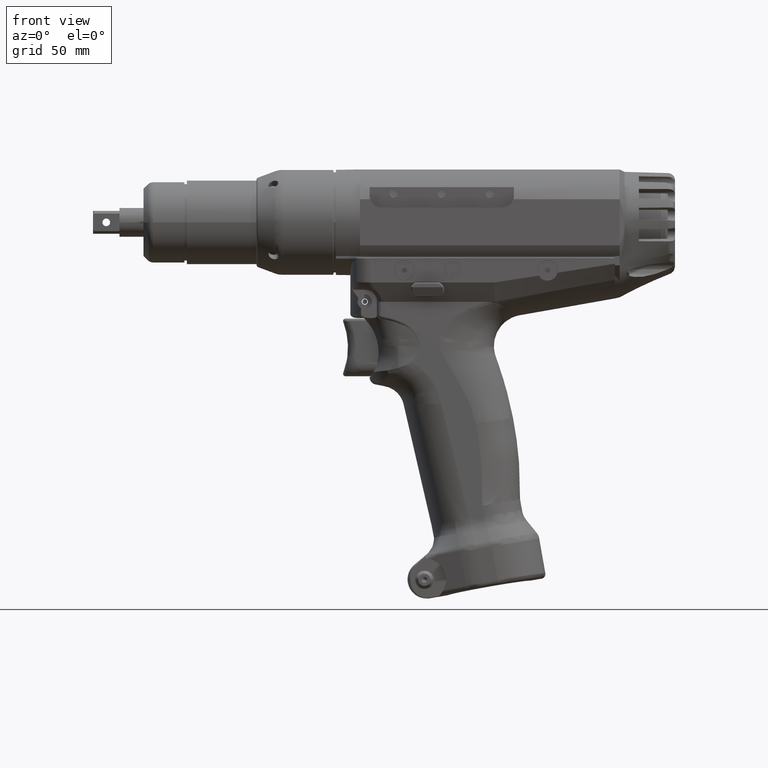
[diagram: clean part render]
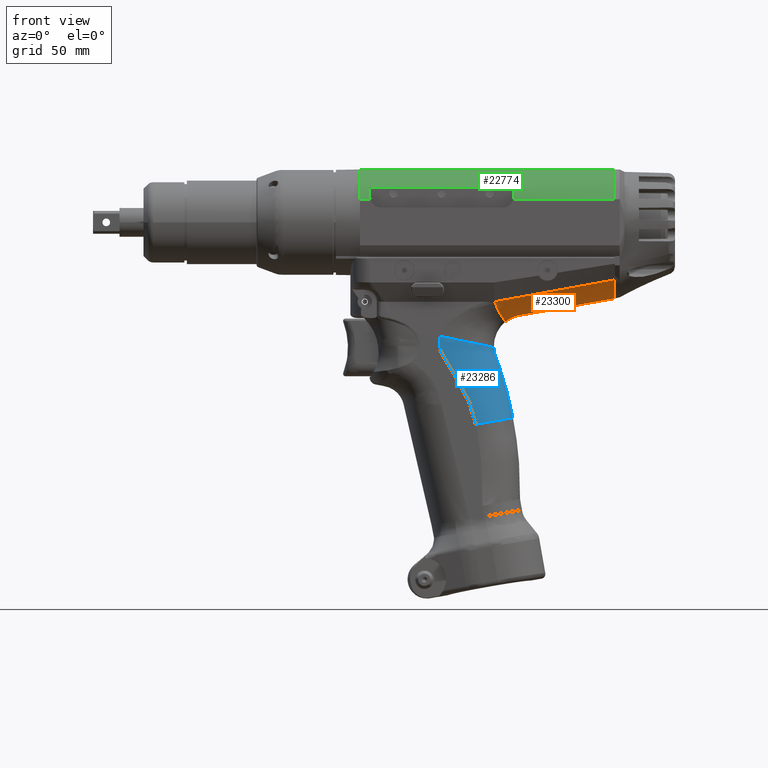
[diagram: same view with three faces highlighted in distinct colors, each labeled with its STEP entity id]
A machine part, front view with three faces highlighted in distinct colors.
Their STEP definitions:

[orange] entity #23300 — the highlighted face is a freeform B-spline surface patch.
#1977=LINE('',#65259,#3333);
#3333=VECTOR('',#30122,10.);
#5069=FACE_OUTER_BOUND('',#6399,.T.);
#6399=EDGE_LOOP('',(#19688,#19689,#19690,#19691,#19692,#19693));
#7757=B_SPLINE_CURVE_WITH_KNOTS('',3,(#37009,#37010,#37011,#37012,#37013,
#37014,#37015,#37016,#37017,#37018,#37019,#37020,#37021,#37022,#37023,#37024,
#37025,#37026,#37027,#37028,#37029,#37030),.UNSPECIFIED.,.F.,.F.,(4,3,3,
3,3,3,3,4),(0.120751289702859,0.999999999999998,2.,3.,4.,5.,6.,6.24662271346046),
 .UNSPECIFIED.);
#8297=B_SPLINE_CURVE_WITH_KNOTS('',3,(#61052,#61053,#61054,#61055,#61056,
#61057,#61058,#61059,#61060,#61061,#61062,#61063,#61064,#61065,#61066,#61067),
 .UNSPECIFIED.,.F.,.F.,(4,2,2,2,2,2,2,4),(0.,0.331487938194346,0.771346387680401,
0.895741269243872,1.60656573115644,3.50194612857809,11.0834863829682,26.4128958618054),
 .UNSPECIFIED.);
#8305=B_SPLINE_CURVE_WITH_KNOTS('',3,(#61277,#61278,#61279,#61280),
 .UNSPECIFIED.,.F.,.F.,(4,4),(6.24662271346046,7.),.UNSPECIFIED.);
#8349=B_SPLINE_CURVE_WITH_KNOTS('',3,(#65233,#65234,#65235,#65236,#65237,
#65238,#65239,#65240,#65241,#65242,#65243,#65244,#65245,#65246,#65247,#65248,
#65249,#65250,#65251,#65252,#65253,#65254,#65255,#65256,#65257,#65258),
 .UNSPECIFIED.,.F.,.F.,(4,2,2,2,2,2,2,2,2,2,2,2,4),(-24.1925661000692,-23.0585395758293,
-21.5213036041073,-19.9840676323854,-18.4468316606634,-16.9095956889415,
-15.3723597172195,-12.2978877737756,-9.2234158303317,-6.1489438868878,-4.61170791516585,
-3.0744719434439,-1.34517341830387),.UNSPECIFIED.);
#8350=B_SPLINE_CURVE_WITH_KNOTS('',3,(#65260,#65261,#65262,#65263),
 .UNSPECIFIED.,.F.,.F.,(4,4),(-1.00597880598376,0.),.UNSPECIFIED.);
#9052=VERTEX_POINT('',#37007);
#9053=VERTEX_POINT('',#37008);
#10285=VERTEX_POINT('',#58599);
#10357=VERTEX_POINT('',#61051);
#10366=VERTEX_POINT('',#61275);
#10397=VERTEX_POINT('',#65232);
#11439=EDGE_CURVE('',#9052,#9053,#7757,.T.);
#13521=EDGE_CURVE('',#10357,#9052,#8297,.T.);
#13541=EDGE_CURVE('',#9053,#10366,#8305,.T.);
#13595=EDGE_CURVE('',#10357,#10397,#8349,.T.);
#13596=EDGE_CURVE('',#10285,#10366,#1977,.T.);
#13597=EDGE_CURVE('',#10397,#10285,#8350,.T.);
#19688=ORIENTED_EDGE('',*,*,#13595,.F.);
#19689=ORIENTED_EDGE('',*,*,#13521,.T.);
#19690=ORIENTED_EDGE('',*,*,#11439,.T.);
#19691=ORIENTED_EDGE('',*,*,#13541,.T.);
#19692=ORIENTED_EDGE('',*,*,#13596,.F.);
#19693=ORIENTED_EDGE('',*,*,#13597,.F.);
#21027=B_SPLINE_SURFACE_WITH_KNOTS('',3,3,((#65012,#65013,#65014,#65015,
#65016,#65017,#65018,#65019,#65020,#65021),(#65022,#65023,#65024,#65025,
#65026,#65027,#65028,#65029,#65030,#65031),(#65032,#65033,#65034,#65035,
#65036,#65037,#65038,#65039,#65040,#65041),(#65042,#65043,#65044,#65045,
#65046,#65047,#65048,#65049,#65050,#65051),(#65052,#65053,#65054,#65055,
#65056,#65057,#65058,#65059,#65060,#65061),(#65062,#65063,#65064,#65065,
#65066,#65067,#65068,#65069,#65070,#65071),(#65072,#65073,#65074,#65075,
#65076,#65077,#65078,#65079,#65080,#65081),(#65082,#65083,#65084,#65085,
#65086,#65087,#65088,#65089,#65090,#65091),(#65092,#65093,#65094,#65095,
#65096,#65097,#65098,#65099,#65100,#65101),(#65102,#65103,#65104,#65105,
#65106,#65107,#65108,#65109,#65110,#65111),(#65112,#65113,#65114,#65115,
#65116,#65117,#65118,#65119,#65120,#65121),(#65122,#65123,#65124,#65125,
#65126,#65127,#65128,#65129,#65130,#65131),(#65132,#65133,#65134,#65135,
#65136,#65137,#65138,#65139,#65140,#65141),(#65142,#65143,#65144,#65145,
#65146,#65147,#65148,#65149,#65150,#65151),(#65152,#65153,#65154,#65155,
#65156,#65157,#65158,#65159,#65160,#65161),(#65162,#65163,#65164,#65165,
#65166,#65167,#65168,#65169,#65170,#65171),(#65172,#65173,#65174,#65175,
#65176,#65177,#65178,#65179,#65180,#65181),(#65182,#65183,#65184,#65185,
#65186,#65187,#65188,#65189,#65190,#65191),(#65192,#65193,#65194,#65195,
#65196,#65197,#65198,#65199,#65200,#65201),(#65202,#65203,#65204,#65205,
#65206,#65207,#65208,#65209,#65210,#65211),(#65212,#65213,#65214,#65215,
#65216,#65217,#65218,#65219,#65220,#65221),(#65222,#65223,#65224,#65225,
#65226,#65227,#65228,#65229,#65230,#65231)),.UNSPECIFIED.,.F.,.F.,.F.,(4,
2,2,2,2,2,2,2,2,2,4),(4,1,1,1,1,1,1,4),(0.,24.3228684679509,36.4843027019263,
39.5246612604202,41.0448405396671,41.8049301792906,42.1849749991023,42.565019818914,
44.085199098161,45.6053783774079,48.6457369359018),(0.11528020668838,1.,
2.,3.,4.,5.,6.,7.),.UNSPECIFIED.);
#23300=ADVANCED_FACE('',(#5069),#21027,.F.);
#30122=DIRECTION('',(0.983808990820089,0.00194793026394755,0.179209584423501));
#37007=CARTESIAN_POINT('',(195.999999999997,-0.299999999996725,-31.6448501099009));
#37008=CARTESIAN_POINT('',(196.,-13.6891796011585,-25.3378724260331));
#37009=CARTESIAN_POINT('Ctrl Pts',(195.999999999967,-0.299999999993897,
-31.644850109731));
#37010=CARTESIAN_POINT('Ctrl Pts',(195.999999999963,-1.02810496422027,-31.6327326673871));
#37011=CARTESIAN_POINT('Ctrl Pts',(195.999999999958,-1.75570034166345,-31.5764834883342));
#37012=CARTESIAN_POINT('Ctrl Pts',(195.999999999954,-2.478580025429,-31.4758805005406));
#37013=CARTESIAN_POINT('Ctrl Pts',(195.999999999948,-3.30073611766968,-31.361461239397));
#37014=CARTESIAN_POINT('Ctrl Pts',(195.999999999943,-4.11679231846235,-31.1896689941029));
#37015=CARTESIAN_POINT('Ctrl Pts',(195.999999999938,-4.91470826731349,-30.9633976281162));
#37016=CARTESIAN_POINT('Ctrl Pts',(195.999999999933,-5.71262421616464,-30.7371262621296));
#37017=CARTESIAN_POINT('Ctrl Pts',(195.999999999927,-6.49239991307425,-30.4563757754502));
#37018=CARTESIAN_POINT('Ctrl Pts',(195.99999999992,-7.25256158293823,-30.121578964292));
#37019=CARTESIAN_POINT('Ctrl Pts',(195.999999999913,-8.0127232528022,-29.7867821531339));
#37020=CARTESIAN_POINT('Ctrl Pts',(195.999999999904,-8.75327089562053,-29.3979390174969));
#37021=CARTESIAN_POINT('Ctrl Pts',(195.999999999899,-9.46353167705636,-28.9588308850281));
#37022=CARTESIAN_POINT('Ctrl Pts',(195.999999999893,-10.1737924584922,-28.5197227525592));
#37023=CARTESIAN_POINT('Ctrl Pts',(195.999999999891,-10.8537663785455,-28.0303496232586));
#37024=CARTESIAN_POINT('Ctrl Pts',(195.999999999885,-11.4907036740203,-27.5024436233053));
#37025=CARTESIAN_POINT('Ctrl Pts',(195.999999999879,-12.127640969495,-26.974537623352));
#37026=CARTESIAN_POINT('Ctrl Pts',(195.99999999987,-12.7215416403912,-26.4080987527462));
#37027=CARTESIAN_POINT('Ctrl Pts',(195.999999999865,-13.2809254488593,-25.7971204903548));
#37028=CARTESIAN_POINT('Ctrl Pts',(195.999999999864,-13.4188822015695,-25.6464393734184));
#37029=CARTESIAN_POINT('Ctrl Pts',(195.999999999863,-13.5547395433439,-25.4930492476205));
#37030=CARTESIAN_POINT('Ctrl Pts',(195.999999999862,-13.689179601171,-25.3378724260439));
#58599=CARTESIAN_POINT('',(145.999999999915,-15.0000000000407,-32.9999999996538));
#61051=CARTESIAN_POINT('',(150.705611217017,-0.299999968525028,-41.1517619435124));
#61052=CARTESIAN_POINT('Ctrl Pts',(150.705610440184,-0.299999999998143,
-41.1517605772717));
#61053=CARTESIAN_POINT('Ctrl Pts',(151.579250041938,-0.299999999998143,
-40.4752326823819));
#61054=CARTESIAN_POINT('Ctrl Pts',(152.536845140365,-0.30000000002267,-39.9119746124731));
#61055=CARTESIAN_POINT('Ctrl Pts',(154.911667933358,-0.30000000002267,-38.897243423224));
#61056=CARTESIAN_POINT('Ctrl Pts',(155.855744480653,-0.299999999998142,
-38.7250232728524));
#61057=CARTESIAN_POINT('Ctrl Pts',(157.00006906153,-0.299999999998142,-38.5227539381955));
#61058=CARTESIAN_POINT('Ctrl Pts',(157.625027452464,-0.299999999998142,
-38.4126013061425));
#61059=CARTESIAN_POINT('Ctrl Pts',(158.045741500046,-0.299999999998142,
-38.3383921441969));
#61060=CARTESIAN_POINT('Ctrl Pts',(158.403766373522,-0.299999999998142,
-38.2752539913426));
#61061=CARTESIAN_POINT('Ctrl Pts',(159.716693405688,-0.299999999998142,
-38.0436880481462));
#61062=CARTESIAN_POINT('Ctrl Pts',(160.671529522951,-0.299999999998142,
-37.8752852773563));
#61063=CARTESIAN_POINT('Ctrl Pts',(165.445718878357,-0.299999999998142,
-37.0332661726645));
#61064=CARTESIAN_POINT('Ctrl Pts',(169.265074943464,-0.299999999998141,
-36.3596658672443));
#61065=CARTESIAN_POINT('Ctrl Pts',(180.806942476138,-0.299999999998141,
-34.3241307948062));
#61066=CARTESIAN_POINT('Ctrl Pts',(188.435697378349,-0.29999999999814,-32.9787787557547));
#61067=CARTESIAN_POINT('Ctrl Pts',(195.999999999967,-0.29999999999814,-31.6448501097309));
#61275=CARTESIAN_POINT('',(195.999999999912,-14.9010005867998,-23.8920539405215));
#61277=CARTESIAN_POINT('Ctrl Pts',(195.999999999862,-13.689179601171,-25.3378724260439));
#61278=CARTESIAN_POINT('Ctrl Pts',(195.99999999986,-14.0998639397983,-24.863841907391));
#61279=CARTESIAN_POINT('Ctrl Pts',(195.999999999858,-14.497322666664,-24.3731385514069));
#61280=CARTESIAN_POINT('Ctrl Pts',(195.999999999854,-14.9010005864602,-23.8920539402476));
#65012=CARTESIAN_POINT('Ctrl Pts',(196.00000000001,-0.286408146948123,-31.6450711841936));
#65013=CARTESIAN_POINT('Ctrl Pts',(196.00000000001,-1.01904992681437,-31.6334309656962));
#65014=CARTESIAN_POINT('Ctrl Pts',(196.00000000001,-2.57875504437379,-31.513449239136));
#65015=CARTESIAN_POINT('Ctrl Pts',(196.00000000001,-4.93284851925514,-31.0178767487961));
#65016=CARTESIAN_POINT('Ctrl Pts',(196.00000000001,-7.27217560998403,-30.1756252887551));
#65017=CARTESIAN_POINT('Ctrl Pts',(196.,-9.49381853843901,-29.0090958818411));
#65018=CARTESIAN_POINT('Ctrl Pts',(196.00000000001,-11.5337402985989,-27.540976493936));
#65019=CARTESIAN_POINT('Ctrl Pts',(196.,-13.3154423112873,-25.8416598821151));
#65020=CARTESIAN_POINT('Ctrl Pts',(196.00000000001,-14.3651762033671,-24.5306245737591));
#65021=CARTESIAN_POINT('Ctrl Pts',(196.00000000001,-14.9010005864598,-23.8920539402191));
#65022=CARTESIAN_POINT('Ctrl Pts',(188.362114612115,-0.285316752725644,
-32.9919811132276));
#65023=CARTESIAN_POINT('Ctrl Pts',(188.33438481969,-1.01522251480896,-32.9859531687053));
#65024=CARTESIAN_POINT('Ctrl Pts',(188.274415134422,-2.5700157096846,-32.8835686873007));
#65025=CARTESIAN_POINT('Ctrl Pts',(188.17715714243,-4.91971399228779,-32.4125091049352));
#65026=CARTESIAN_POINT('Ctrl Pts',(188.07364876165,-7.25803020090529,-31.5959770584001));
#65027=CARTESIAN_POINT('Ctrl Pts',(187.96815640064,-9.48223165329,-30.4552990400662));
#65028=CARTESIAN_POINT('Ctrl Pts',(187.86350629352,-11.5283125461864,-29.0124604004481));
#65029=CARTESIAN_POINT('Ctrl Pts',(187.76392370831,-13.3193961448074,-27.3368462059921));
#65030=CARTESIAN_POINT('Ctrl Pts',(187.69917518998,-14.3776308223543,-26.0409806842332));
#65031=CARTESIAN_POINT('Ctrl Pts',(187.66672585799,-14.9175003715186,-25.4100341679542));
#65032=CARTESIAN_POINT('Ctrl Pts',(180.72419286707,-0.284391488477558,-34.3389454882404));
#65033=CARTESIAN_POINT('Ctrl Pts',(180.668773596683,-1.01197847020627,-34.3387622591521));
#65034=CARTESIAN_POINT('Ctrl Pts',(180.549227569445,-2.56262260015173,-34.25621784332));
#65035=CARTESIAN_POINT('Ctrl Pts',(180.35497477713,-4.90873866208477,-33.8111947595111));
#65036=CARTESIAN_POINT('Ctrl Pts',(180.14808841585,-7.24646213321357,-33.021166666527));
#65037=CARTESIAN_POINT('Ctrl Pts',(179.937090072,-9.47321070436779,-31.9063204503861));
#65038=CARTESIAN_POINT('Ctrl Pts',(179.72762850625,-11.524997918787,-30.487916602834));
#65039=CARTESIAN_POINT('Ctrl Pts',(179.52816605563,-13.3246029552764,-28.8343962098991));
#65040=CARTESIAN_POINT('Ctrl Pts',(179.39837770509,-14.3904864211958,-27.5521065354361));
#65041=CARTESIAN_POINT('Ctrl Pts',(179.33334182772,-14.9340003741547,-26.928034412815));
#65042=CARTESIAN_POINT('Ctrl Pts',(169.267367976889,-0.283258166735067,
-36.3594557552525));
#65043=CARTESIAN_POINT('Ctrl Pts',(169.170479365899,-1.00799958973848,-36.368395839287));
#65044=CARTESIAN_POINT('Ctrl Pts',(168.962178862618,-2.55347022751914,-36.3190512117716));
#65045=CARTESIAN_POINT('Ctrl Pts',(168.62284802493,-4.89538285064981,-35.915418567059));
#65046=CARTESIAN_POINT('Ctrl Pts',(168.26110555078,-7.23281891296172,-35.1663480653151));
#65047=CARTESIAN_POINT('Ctrl Pts',(167.89183810894,-9.46337169773578,-34.0902174227371));
#65048=CARTESIAN_POINT('Ctrl Pts',(167.52492226673,-11.5230667070879,-32.707165771106));
#65049=CARTESIAN_POINT('Ctrl Pts',(167.1751936558,-13.3342160209368,-31.0843160581071));
#65050=CARTESIAN_POINT('Ctrl Pts',(166.94740479264,-14.4103465369533,-29.8199433365421));
#65051=CARTESIAN_POINT('Ctrl Pts',(166.83328169011,-14.9587503466117,-29.205031882361));
#65052=CARTESIAN_POINT('Ctrl Pts',(165.448256108299,-0.282922871417137,
-37.0330011231889));
#65053=CARTESIAN_POINT('Ctrl Pts',(165.337562715532,-1.0068212639932,-37.0450395875585));
#65054=CARTESIAN_POINT('Ctrl Pts',(165.099795017358,-2.55074140933272,-37.0073270304707));
#65055=CARTESIAN_POINT('Ctrl Pts',(164.71220070399,-4.89144731693484,-36.617872137014));
#65056=CARTESIAN_POINT('Ctrl Pts',(164.29890390513,-7.22888757253237,-35.882647434279));
#65057=CARTESIAN_POINT('Ctrl Pts',(163.87690885715,-9.4607056859156,-34.819411317218));
#65058=CARTESIAN_POINT('Ctrl Pts',(163.45749960145,-11.5229283101371,-33.447923645516));
#65059=CARTESIAN_POINT('Ctrl Pts',(163.05763788029,-13.337719974656,-31.834884364784));
#65060=CARTESIAN_POINT('Ctrl Pts',(162.79712866215,-14.4170623866498,-30.576076435788));
#65061=CARTESIAN_POINT('Ctrl Pts',(162.66661853917,-14.967000290779,-29.96402674692));
#65062=CARTESIAN_POINT('Ctrl Pts',(160.674658964066,-0.282556821637965,
-37.8748972627109));
#65063=CARTESIAN_POINT('Ctrl Pts',(160.54671374067,-1.00553227992357,-37.8908845943245));
#65064=CARTESIAN_POINT('Ctrl Pts',(160.272217409142,-2.54771522596848,-37.86842596911));
#65065=CARTESIAN_POINT('Ctrl Pts',(159.82434512387,-4.88714513355111,-37.497182131173));
#65066=CARTESIAN_POINT('Ctrl Pts',(159.34661164463,-7.2247101519802,-36.779519623892));
#65067=CARTESIAN_POINT('Ctrl Pts',(158.858666015619,-9.45810664841359,-35.732401803347));
#65068=CARTESIAN_POINT('Ctrl Pts',(158.37355140323,-11.5233593255955,-34.375107217339));
#65069=CARTESIAN_POINT('Ctrl Pts',(157.91089247563,-13.3424580152191,-32.7738270021879));
#65070=CARTESIAN_POINT('Ctrl Pts',(157.60936603291,-14.4255717198207,-31.521473645499));
#65071=CARTESIAN_POINT('Ctrl Pts',(157.45831645042,-14.9773126678256,-30.912765436667));
#65072=CARTESIAN_POINT('Ctrl Pts',(159.719961409297,-0.282486161443022,
-38.0432717424327));
#65073=CARTESIAN_POINT('Ctrl Pts',(159.588566499566,-1.00528330486255,-38.0600511064173));
#65074=CARTESIAN_POINT('Ctrl Pts',(159.306731492554,-2.54712820047722,-38.0406795032557));
#65075=CARTESIAN_POINT('Ctrl Pts',(158.84681105031,-4.88631389780917,-37.673100732295));
#65076=CARTESIAN_POINT('Ctrl Pts',(158.35619787492,-7.22390951024775,-36.9589617907421));
#65077=CARTESIAN_POINT('Ctrl Pts',(157.8550696465,-9.45762150706462,-35.9150660520261));
#65078=CARTESIAN_POINT('Ctrl Pts',(157.35682114754,-11.5234740409598,-34.5605954848051));
#65079=CARTESIAN_POINT('Ctrl Pts',(156.88160935104,-13.3434224663338,-32.961640518996));
#65080=CARTESIAN_POINT('Ctrl Pts',(156.57188355641,-14.427278877761,-31.71055216333));
#65081=CARTESIAN_POINT('Ctrl Pts',(156.41672814943,-14.9793750004446,-31.1025000379062));
#65082=CARTESIAN_POINT('Ctrl Pts',(158.287789326238,-0.282384679784158,
-38.2958632146118));
#65083=CARTESIAN_POINT('Ctrl Pts',(158.15122613672,-1.00492549893844,-38.3138405013659));
#65084=CARTESIAN_POINT('Ctrl Pts',(157.858400856738,-2.54628093481271,-38.2991451748589));
#65085=CARTESIAN_POINT('Ctrl Pts',(157.38042072676,-4.88512042963182,-37.937099981804));
#65086=CARTESIAN_POINT('Ctrl Pts',(156.87048972292,-7.22277230613446,-37.2282655142701));
#65087=CARTESIAN_POINT('Ctrl Pts',(156.34957795315,-9.45695732766406,-36.18920363378));
#65088=CARTESIAN_POINT('Ctrl Pts',(155.83160756588,-11.5236985277892,-34.838950899244));
#65089=CARTESIAN_POINT('Ctrl Pts',(155.33753525254,-13.3449003834677,-33.243448092338));
#65090=CARTESIAN_POINT('Ctrl Pts',(155.01548251461,-14.4298498645997,-31.994221468203));
#65091=CARTESIAN_POINT('Ctrl Pts',(154.85415506348,-14.9824688768271,-31.387136665531));
#65092=CARTESIAN_POINT('Ctrl Pts',(157.810491277091,-0.282350245490775,
-38.3800299519953));
#65093=CARTESIAN_POINT('Ctrl Pts',(157.672186968569,-1.00480399852616,-38.398399113914));
#65094=CARTESIAN_POINT('Ctrl Pts',(157.3756664719,-2.54599173317531,-38.3852919204692));
#65095=CARTESIAN_POINT('Ctrl Pts',(156.89162966616,-4.8847117264701,-38.025102871848));
#65096=CARTESIAN_POINT('Ctrl Pts',(156.37523756245,-7.2223802393525,-37.3180436855201));
#65097=CARTESIAN_POINT('Ctrl Pts',(155.84772598835,-9.45672297502004,-36.280595220388));
#65098=CARTESIAN_POINT('Ctrl Pts',(155.32319349381,-11.5237626540424,-34.931745365803));
#65099=CARTESIAN_POINT('Ctrl Pts',(154.82286225283,-13.3453866238035,-33.337385329519));
#65100=CARTESIAN_POINT('Ctrl Pts',(154.49673002221,-14.4307047305016,-32.0887706818619));
#65101=CARTESIAN_POINT('Ctrl Pts',(154.33335898547,-14.983500046953,-31.4820043172639));
#65102=CARTESIAN_POINT('Ctrl Pts',(157.094409205554,-0.282304350935519,
-38.5063573532138));
#65103=CARTESIAN_POINT('Ctrl Pts',(156.953563311185,-1.00464215459453,-38.5253466261788));
#65104=CARTESIAN_POINT('Ctrl Pts',(156.6516283333,-2.54560813947947,-38.5145574333547));
#65105=CARTESIAN_POINT('Ctrl Pts',(156.15865189205,-4.8841792006454,-38.157139705604));
#65106=CARTESIAN_POINT('Ctrl Pts',(155.63265522281,-7.22188826243172,-37.452732168465));
#65107=CARTESIAN_POINT('Ctrl Pts',(155.09526649751,-9.45646714281527,-36.417694737458));
#65108=CARTESIAN_POINT('Ctrl Pts',(154.56084642418,-11.5239376506971,-35.070942607797));
#65109=CARTESIAN_POINT('Ctrl Pts',(154.05101958239,-13.346162709815,-33.478292806042));
#65110=CARTESIAN_POINT('Ctrl Pts',(153.71865411888,-14.4320019774682,-32.230595178851));
#65111=CARTESIAN_POINT('Ctrl Pts',(153.55216454205,-14.9850468027882,-31.6243058543201));
#65112=CARTESIAN_POINT('Ctrl Pts',(156.85571110149,-0.282278848120631,-38.5483503037067));
#65113=CARTESIAN_POINT('Ctrl Pts',(156.713870580857,-1.00455182821022,-38.5674773119719));
#65114=CARTESIAN_POINT('Ctrl Pts',(156.409867246483,-2.54538745146504,-38.557629108767));
#65115=CARTESIAN_POINT('Ctrl Pts',(155.91361636721,-4.88385282993198,-38.201179870787));
#65116=CARTESIAN_POINT('Ctrl Pts',(155.38425131777,-7.22154660837639,-37.497687414199));
#65117=CARTESIAN_POINT('Ctrl Pts',(154.84354366472,-9.45620503645064,-36.463469412964));
#65118=CARTESIAN_POINT('Ctrl Pts',(154.3059462021,-11.5238504358123,-35.117415962987));
#65119=CARTESIAN_POINT('Ctrl Pts',(153.79320768362,-13.3463352369502,-33.525319965292));
#65120=CARTESIAN_POINT('Ctrl Pts',(153.45902532619,-14.4324070263481,-32.277906696956));
#65121=CARTESIAN_POINT('Ctrl Pts',(153.29161836264,-14.9855626811675,-31.671766665285));
#65122=CARTESIAN_POINT('Ctrl Pts',(156.497837717852,-0.282279266350929,
-38.6117451408794));
#65123=CARTESIAN_POINT('Ctrl Pts',(156.355039636598,-1.00455411316744,-38.6313401770605));
#65124=CARTESIAN_POINT('Ctrl Pts',(156.048884955656,-2.54540654471226,-38.622298044948));
#65125=CARTESIAN_POINT('Ctrl Pts',(155.54876770832,-4.88392479916688,-38.267155407604));
#65126=CARTESIAN_POINT('Ctrl Pts',(155.01491503232,-7.2217043318516,-37.564935230767));
#65127=CARTESIAN_POINT('Ctrl Pts',(154.46926888349,-9.45647901094389,-36.5318981205021));
#65128=CARTESIAN_POINT('Ctrl Pts',(153.92640422169,-11.5242688455866,-35.186899317705));
#65129=CARTESIAN_POINT('Ctrl Pts',(153.40829562832,-13.3469193936773,-33.595693318858));
#65130=CARTESIAN_POINT('Ctrl Pts',(153.0703775665,-14.4331182542593,-32.3487812739029));
#65131=CARTESIAN_POINT('Ctrl Pts',(152.90112028577,-14.9863358627794,-31.742899373695));
#65132=CARTESIAN_POINT('Ctrl Pts',(156.377942103957,-0.282195491596259,
-38.6320252456304));
#65133=CARTESIAN_POINT('Ctrl Pts',(156.233681778603,-1.00425585005118,-38.6511962840888));
#65134=CARTESIAN_POINT('Ctrl Pts',(155.924788078898,-2.54465184237885,-38.6437396055251));
#65135=CARTESIAN_POINT('Ctrl Pts',(155.42119507055,-4.88272814361179,-38.289333098781));
#65136=CARTESIAN_POINT('Ctrl Pts',(154.88472195194,-7.22029991194107,-37.5877360674201));
#65137=CARTESIAN_POINT('Ctrl Pts',(154.33746088238,-9.45511985069501,-36.555177162668));
#65138=CARTESIAN_POINT('Ctrl Pts',(153.79405943076,-11.5232138997955,-35.210494453381));
#65139=CARTESIAN_POINT('Ctrl Pts',(153.27647576117,-13.3464060619082,-33.619435333911));
#65140=CARTESIAN_POINT('Ctrl Pts',(152.93960529754,-14.4331290160434,-32.3725138348261));
#65141=CARTESIAN_POINT('Ctrl Pts',(152.77080975739,-14.9865938760972,-31.7666365989651));
#65142=CARTESIAN_POINT('Ctrl Pts',(156.141089750158,-0.282445013158896,
-38.6768286580897));
#65143=CARTESIAN_POINT('Ctrl Pts',(155.999570324917,-1.00514551354674,-38.6980375771681));
#65144=CARTESIAN_POINT('Ctrl Pts',(155.69521458356,-2.54692461026169,-38.6872225094027));
#65145=CARTESIAN_POINT('Ctrl Pts',(155.19548557891,-4.88640095904661,-38.3328097808211));
#65146=CARTESIAN_POINT('Ctrl Pts',(154.65930363506,-7.22473184295396,-37.63148312127));
#65147=CARTESIAN_POINT('Ctrl Pts',(154.10859944159,-9.45961008592938,-36.59947087266));
#65148=CARTESIAN_POINT('Ctrl Pts',(153.55800886416,-11.5270401828562,-35.2556039935482));
#65149=CARTESIAN_POINT('Ctrl Pts',(153.02991526009,-13.3488987530834,-33.6655871579181));
#65150=CARTESIAN_POINT('Ctrl Pts',(152.68370927566,-14.4342760318095,-32.419524717502));
#65151=CARTESIAN_POINT('Ctrl Pts',(152.51045928953,-14.9871093669699,-31.814061759324));
#65152=CARTESIAN_POINT('Ctrl Pts',(156.022648662995,-0.282537726218189,
-38.700877349721));
#65153=CARTESIAN_POINT('Ctrl Pts',(155.881853315522,-1.00547509462484,-38.7227185756753));
#65154=CARTESIAN_POINT('Ctrl Pts',(155.578495740162,-2.5477508083587,-38.7107178863841));
#65155=CARTESIAN_POINT('Ctrl Pts',(155.07937163931,-4.88773987036712,-38.3561578557949));
#65156=CARTESIAN_POINT('Ctrl Pts',(154.54263108315,-7.22635398120124,-37.654754154292));
#65157=CARTESIAN_POINT('Ctrl Pts',(153.99018075343,-9.46126402530646,-36.622741417882));
#65158=CARTESIAN_POINT('Ctrl Pts',(153.4366705875,-11.5284665064793,-35.27895278701));
#65159=CARTESIAN_POINT('Ctrl Pts',(152.90464427993,-13.3498565011364,-33.689086961098));
#65160=CARTESIAN_POINT('Ctrl Pts',(152.55509396742,-14.4347572774092,-32.44317490951));
#65161=CARTESIAN_POINT('Ctrl Pts',(152.38023846866,-14.9873672026678,-31.8377826435701));
#65162=CARTESIAN_POINT('Ctrl Pts',(155.432964462815,-0.283157288507183,
-38.8292893815133));
#65163=CARTESIAN_POINT('Ctrl Pts',(155.297142863966,-1.00767424039154,-38.8547275310834));
#65164=CARTESIAN_POINT('Ctrl Pts',(155.000691686113,-2.55321016994238,-38.8344762396026));
#65165=CARTESIAN_POINT('Ctrl Pts',(154.50680020286,-4.89656496562248,-38.477767940973));
#65166=CARTESIAN_POINT('Ctrl Pts',(153.96826082868,-7.23700776734479,-37.774651954012));
#65167=CARTESIAN_POINT('Ctrl Pts',(153.40676619367,-9.47206550077342,-36.741455945972));
#65168=CARTESIAN_POINT('Ctrl Pts',(152.8370081148,-11.5376830163916,-35.397060374003));
#65169=CARTESIAN_POINT('Ctrl Pts',(152.28244646477,-13.3558812972657,-33.807168172528));
#65170=CARTESIAN_POINT('Ctrl Pts',(151.91341954452,-14.4375587890092,-32.5616148368929));
#65171=CARTESIAN_POINT('Ctrl Pts',(151.72923532994,-14.9886561812467,-31.956368673014));
#65172=CARTESIAN_POINT('Ctrl Pts',(154.967091666711,-0.283866187525075,
-38.958243270857));
#65173=CARTESIAN_POINT('Ctrl Pts',(154.835432604861,-1.01017764258047,-38.9858052808516));
#65174=CARTESIAN_POINT('Ctrl Pts',(154.54309020572,-2.55921752822809,-38.9558568622397));
#65175=CARTESIAN_POINT('Ctrl Pts',(154.05239944666,-4.90625520435505,-38.59353412425));
#65176=CARTESIAN_POINT('Ctrl Pts',(153.51147277393,-7.24867029795043,-37.885039946857));
#65177=CARTESIAN_POINT('Ctrl Pts',(152.9418745903,-9.48383227128692,-36.846947030422));
#65178=CARTESIAN_POINT('Ctrl Pts',(152.35835620633,-11.5476302101345,-35.498283266745));
#65179=CARTESIAN_POINT('Ctrl Pts',(151.78513765499,-13.362227324567,-33.904902835938));
#65180=CARTESIAN_POINT('Ctrl Pts',(151.40018648804,-14.4402883283787,-32.6574723967561));
#65181=CARTESIAN_POINT('Ctrl Pts',(151.20836153069,-14.9896875052598,-32.0512504823651));
#65182=CARTESIAN_POINT('Ctrl Pts',(154.052846570824,-0.285757895197247,
-39.2668669346086));
#65183=CARTESIAN_POINT('Ctrl Pts',(153.930154826053,-1.01682439636591,-39.2970791195296));
#65184=CARTESIAN_POINT('Ctrl Pts',(153.642705079202,-2.57462265271455,-39.2418232319211));
#65185=CARTESIAN_POINT('Ctrl Pts',(153.15609898025,-4.93107350007641,-38.860655567483));
#65186=CARTESIAN_POINT('Ctrl Pts',(152.60790365537,-7.27848621284954,-38.133605199662));
#65187=CARTESIAN_POINT('Ctrl Pts',(152.0195287427,-9.51382787972963,-37.07806834502));
#65188=CARTESIAN_POINT('Ctrl Pts',(151.40591261076,-11.5728461987307,-35.7135810339961));
#65189=CARTESIAN_POINT('Ctrl Pts',(150.79290066752,-13.3780746396807,-34.106583364273));
#65190=CARTESIAN_POINT('Ctrl Pts',(150.37447020057,-14.446756875838,-32.8512810450641));
#65191=CARTESIAN_POINT('Ctrl Pts',(150.16654812797,-14.9917502835776,-32.24102608789));
#65192=CARTESIAN_POINT('Ctrl Pts',(153.604264074229,-0.286938488535632,
-39.44666870454));
#65193=CARTESIAN_POINT('Ctrl Pts',(153.486355019675,-1.02095942141707,-39.4773702532639));
#65194=CARTESIAN_POINT('Ctrl Pts',(153.199631355365,-2.58399228540517,-39.4065354670415));
#65195=CARTESIAN_POINT('Ctrl Pts',(152.71388332694,-4.94615640135169,-39.012112586873));
#65196=CARTESIAN_POINT('Ctrl Pts',(152.160832172279,-7.29658563994998,-38.2718559117891));
#65197=CARTESIAN_POINT('Ctrl Pts',(151.56186201535,-9.53200290684215,-37.203741230396));
#65198=CARTESIAN_POINT('Ctrl Pts',(150.93203814421,-11.588070526467,-35.8276660480811));
#65199=CARTESIAN_POINT('Ctrl Pts',(150.29806407143,-13.387549295229,-34.2105065174781));
#65200=CARTESIAN_POINT('Ctrl Pts',(149.86222665701,-14.4504869468235,-32.949186759301));
#65201=CARTESIAN_POINT('Ctrl Pts',(149.64591932473,-14.9927811225015,-32.335863269032));
#65202=CARTESIAN_POINT('Ctrl Pts',(152.293855446797,-0.291221357174205,
-40.0581374956514));
#65203=CARTESIAN_POINT('Ctrl Pts',(152.190891659207,-1.0359064588561,-40.0874418665277));
#65204=CARTESIAN_POINT('Ctrl Pts',(151.899708032761,-2.61698360202054,-39.9623970932858));
#65205=CARTESIAN_POINT('Ctrl Pts',(151.41123610722,-4.99923601229937,-39.5174061360271));
#65206=CARTESIAN_POINT('Ctrl Pts',(150.83818575103,-7.36023142197355,-38.726445958082));
#65207=CARTESIAN_POINT('Ctrl Pts',(150.20209652242,-9.59583425461074,-37.609704067316));
#65208=CARTESIAN_POINT('Ctrl Pts',(149.518562981,-11.6414077118435,-36.188465456488));
#65209=CARTESIAN_POINT('Ctrl Pts',(148.817061014109,-13.4205181220247,-34.531319786461));
#65210=CARTESIAN_POINT('Ctrl Pts',(148.32612031585,-14.4631321963224,-33.246040272774));
#65211=CARTESIAN_POINT('Ctrl Pts',(148.08320050642,-14.9958752874323,-32.620526443109));
#65212=CARTESIAN_POINT('Ctrl Pts',(151.466207242208,-0.295079345076675,
-40.5630802680149));
#65213=CARTESIAN_POINT('Ctrl Pts',(151.37422861014,-1.04930659332484,-40.587561196431));
#65214=CARTESIAN_POINT('Ctrl Pts',(151.071265060334,-2.64550963579025,-40.416219037093));
#65215=CARTESIAN_POINT('Ctrl Pts',(150.57427981352,-5.04509865248041,-39.9228564497531));
#65216=CARTESIAN_POINT('Ctrl Pts',(149.98104702843,-7.41516681951908,-39.0830690151561));
#65217=CARTESIAN_POINT('Ctrl Pts',(149.31350309526,-9.65083776981653,-37.9191605788561));
#65218=CARTESIAN_POINT('Ctrl Pts',(148.58778271948,-11.6872177684273,-36.4537519380951));
#65219=CARTESIAN_POINT('Ctrl Pts',(147.8354578248,-13.4485754833572,-34.7571224445701));
#65220=CARTESIAN_POINT('Ctrl Pts',(147.30418977347,-14.473506349871,-33.447907698362));
#65221=CARTESIAN_POINT('Ctrl Pts',(147.04171191569,-14.9979374226261,-32.8102428812311));
#65222=CARTESIAN_POINT('Ctrl Pts',(150.705610454127,-0.299999890567759,
-41.1517605733611));
#65223=CARTESIAN_POINT('Ctrl Pts',(150.624500020879,-1.06630850842883,-41.1663480887583));
#65224=CARTESIAN_POINT('Ctrl Pts',(150.29855247066,-2.68023936785713,-40.9426817154012));
#65225=CARTESIAN_POINT('Ctrl Pts',(149.78277086745,-5.10091131096211,-40.38838887276));
#65226=CARTESIAN_POINT('Ctrl Pts',(149.15898904157,-7.48197907886165,-39.4868168071841));
#65227=CARTESIAN_POINT('Ctrl Pts',(148.44999008681,-9.71766550497523,-38.262935751766));
#65228=CARTESIAN_POINT('Ctrl Pts',(147.6727324756,-11.7427652830608,-36.741056502592));
#65229=CARTESIAN_POINT('Ctrl Pts',(146.86124130777,-13.482406424404,-34.993630321125));
#65230=CARTESIAN_POINT('Ctrl Pts',(146.28459904712,-14.4857277943599,-33.653392097766));
#65231=CARTESIAN_POINT('Ctrl Pts',(145.99999999998,-15.0000000000008,-32.9999999999941));
#65232=CARTESIAN_POINT('',(146.32613658195,-14.4149653299117,-33.7505730793561));
#65233=CARTESIAN_POINT('Ctrl Pts',(150.705611373132,-0.299999969668519,
-41.1517623196751));
#65234=CARTESIAN_POINT('Ctrl Pts',(150.675859634133,-0.581033958739449,
-41.1571024142047));
#65235=CARTESIAN_POINT('Ctrl Pts',(150.636395101983,-0.861294226063531,
-41.1463636273172));
#65236=CARTESIAN_POINT('Ctrl Pts',(150.529061614946,-1.51633762888328,-41.093612152397));
#65237=CARTESIAN_POINT('Ctrl Pts',(150.456356493236,-1.88954006629854,-41.0422820768021));
#65238=CARTESIAN_POINT('Ctrl Pts',(150.304951278798,-2.63041298496961,-40.9184869409639));
#65239=CARTESIAN_POINT('Ctrl Pts',(150.228011234846,-2.9994184451009,-40.8483841595703));
#65240=CARTESIAN_POINT('Ctrl Pts',(150.072167992734,-3.73335618295536,-40.6923476122958));
#65241=CARTESIAN_POINT('Ctrl Pts',(149.992779534157,-4.0982517245368,-40.6057864081454));
#65242=CARTESIAN_POINT('Ctrl Pts',(149.829389250593,-4.821852076835,-40.4132376983722));
#65243=CARTESIAN_POINT('Ctrl Pts',(149.74520028916,-5.18046999496537,-40.3069980208427));
#65244=CARTESIAN_POINT('Ctrl Pts',(149.570751013696,-5.88911261761622,-40.0730392027975));
#65245=CARTESIAN_POINT('Ctrl Pts',(149.480708974292,-6.23927982248511,-39.945606549613));
#65246=CARTESIAN_POINT('Ctrl Pts',(149.202445740378,-7.27536658258246,-39.5323953867731));
#65247=CARTESIAN_POINT('Ctrl Pts',(149.006189412576,-7.94678854322633,-39.2158536701525));
#65248=CARTESIAN_POINT('Ctrl Pts',(148.595235426831,-9.24171284495273,-38.506065360941));
#65249=CARTESIAN_POINT('Ctrl Pts',(148.380448916416,-9.8649666661023,-38.1124369793658));
#65250=CARTESIAN_POINT('Ctrl Pts',(147.935388224501,-11.0538387212556,-37.2533967506907));
#65251=CARTESIAN_POINT('Ctrl Pts',(147.705245883188,-11.6200271719088,-36.7886292136505));
#65252=CARTESIAN_POINT('Ctrl Pts',(147.350921935372,-12.4196720894074,-36.0425945135368));
#65253=CARTESIAN_POINT('Ctrl Pts',(147.231275667655,-12.6779221337528,-35.785697491197));
#65254=CARTESIAN_POINT('Ctrl Pts',(146.989463267037,-13.1770957470791,-35.2568607683428));
#65255=CARTESIAN_POINT('Ctrl Pts',(146.867229630046,-13.4178072367301,-34.9846247448886));
#65256=CARTESIAN_POINT('Ctrl Pts',(146.605475408824,-13.91185943225,-34.392591430218));
#65257=CARTESIAN_POINT('Ctrl Pts',(146.465903340668,-14.1643206005051,-34.0722644412533));
#65258=CARTESIAN_POINT('Ctrl Pts',(146.32613658195,-14.4149653299117,-33.7505730793561));
#65259=CARTESIAN_POINT('',(145.999999999919,-15.0000000000865,-32.9999999996795));
#65260=CARTESIAN_POINT('Ctrl Pts',(146.32613658195,-14.4149653299117,-33.7505730793561));
#65261=CARTESIAN_POINT('Ctrl Pts',(146.217418523021,-14.609930436308,-33.5003444505285));
#65262=CARTESIAN_POINT('Ctrl Pts',(146.108589721423,-14.8037793996399,-33.2493046604182));
#65263=CARTESIAN_POINT('Ctrl Pts',(145.999999999915,-15.0000000000407,-32.9999999996538));

[blue] entity #23286 — the highlighted face is a freeform B-spline surface patch.
#5055=FACE_OUTER_BOUND('',#6385,.T.);
#6385=EDGE_LOOP('',(#19620,#19621,#19622,#19623,#19624));
#8299=B_SPLINE_CURVE_WITH_KNOTS('',3,(#61080,#61081,#61082,#61083,#61084,
#61085,#61086,#61087,#61088,#61089),.UNSPECIFIED.,.F.,.F.,(4,2,2,2,4),(2.59831827777823E-10,
1.52395814287799,2.28240439576014,2.92242067351702,4.41609453814139),
 .UNSPECIFIED.);
#8321=B_SPLINE_CURVE_WITH_KNOTS('',3,(#62465,#62466,#62467,#62468,#62469,
#62470,#62471,#62472,#62473,#62474,#62475,#62476,#62477,#62478,#62479,#62480,
#62481,#62482,#62483,#62484,#62485,#62486,#62487,#62488,#62489,#62490,#62491,
#62492,#62493,#62494,#62495,#62496,#62497,#62498,#62499,#62500,#62501),
 .UNSPECIFIED.,.F.,.F.,(4,3,3,3,3,3,3,3,3,3,3,3,4),(0.0480513549656024,
3.07447194330146,4.6117079150337,6.14894388676594,9.22341583023041,12.2978877736949,
15.3723597171594,16.9095956888917,18.4468316606238,19.9840676323561,21.5213036040883,
23.0585395758206,24.3561840656064),.UNSPECIFIED.);
#8322=B_SPLINE_CURVE_WITH_KNOTS('',3,(#62503,#62504,#62505,#62506,#62507,
#62508,#62509,#62510,#62511,#62512,#62513,#62514,#62515,#62516,#62517,#62518,
#62519,#62520,#62521,#62522),.UNSPECIFIED.,.F.,.F.,(4,2,2,2,2,2,2,2,2,4),
(-6.8546789309067,-5.12935180490891,-4.41880186751197,-4.03366518010407,
-3.64852849269617,-3.14006944780411,-2.63161040291204,-1.77138653259447,
-0.918040733133623,0.),.UNSPECIFIED.);
#8323=B_SPLINE_CURVE_WITH_KNOTS('',3,(#62524,#62525,#62526,#62527,#62528,
#62529,#62530,#62531,#62532,#62533,#62534,#62535,#62536,#62537,#62538,#62539,
#62540,#62541,#62542,#62543),.UNSPECIFIED.,.F.,.F.,(4,2,2,2,2,2,2,2,2,4),
(2.41384233712228E-8,4.41197645880191,8.82395291760381,13.2359293764057,
17.6479058352076,22.0598822940095,24.2658705234105,26.4718587528114,28.6778469822124,
29.2621880037137),.UNSPECIFIED.);
#8324=B_SPLINE_CURVE_WITH_KNOTS('',3,(#62544,#62545,#62546,#62547,#62548,
#62549,#62550,#62551,#62552,#62553,#62554,#62555,#62556,#62557,#62558,#62559,
#62560,#62561,#62562,#62563,#62564,#62565),.UNSPECIFIED.,.F.,.F.,(4,3,3,
3,3,3,3,4),(-6.91446055901153,-6.000005313668,-5.00001103419731,-4.00001536112901,
-3.00001686245994,-2.00001493082698,-1.00000920455593,0.),.UNSPECIFIED.);
#10358=VERTEX_POINT('',#61068);
#10359=VERTEX_POINT('',#61079);
#10378=VERTEX_POINT('',#62464);
#10379=VERTEX_POINT('',#62502);
#10380=VERTEX_POINT('',#62523);
#13523=EDGE_CURVE('',#10359,#10358,#8299,.T.);
#13563=EDGE_CURVE('',#10378,#10358,#8321,.T.);
#13564=EDGE_CURVE('',#10379,#10378,#8322,.T.);
#13565=EDGE_CURVE('',#10380,#10379,#8323,.T.);
#13566=EDGE_CURVE('',#10359,#10380,#8324,.T.);
#19620=ORIENTED_EDGE('',*,*,#13563,.F.);
#19621=ORIENTED_EDGE('',*,*,#13564,.F.);
#19622=ORIENTED_EDGE('',*,*,#13565,.F.);
#19623=ORIENTED_EDGE('',*,*,#13566,.F.);
#19624=ORIENTED_EDGE('',*,*,#13523,.T.);
#21015=B_SPLINE_SURFACE_WITH_KNOTS('',3,3,((#62144,#62145,#62146,#62147,
#62148,#62149,#62150,#62151,#62152,#62153),(#62154,#62155,#62156,#62157,
#62158,#62159,#62160,#62161,#62162,#62163),(#62164,#62165,#62166,#62167,
#62168,#62169,#62170,#62171,#62172,#62173),(#62174,#62175,#62176,#62177,
#62178,#62179,#62180,#62181,#62182,#62183),(#62184,#62185,#62186,#62187,
#62188,#62189,#62190,#62191,#62192,#62193),(#62194,#62195,#62196,#62197,
#62198,#62199,#62200,#62201,#62202,#62203),(#62204,#62205,#62206,#62207,
#62208,#62209,#62210,#62211,#62212,#62213),(#62214,#62215,#62216,#62217,
#62218,#62219,#62220,#62221,#62222,#62223),(#62224,#62225,#62226,#62227,
#62228,#62229,#62230,#62231,#62232,#62233),(#62234,#62235,#62236,#62237,
#62238,#62239,#62240,#62241,#62242,#62243),(#62244,#62245,#62246,#62247,
#62248,#62249,#62250,#62251,#62252,#62253),(#62254,#62255,#62256,#62257,
#62258,#62259,#62260,#62261,#62262,#62263),(#62264,#62265,#62266,#62267,
#62268,#62269,#62270,#62271,#62272,#62273),(#62274,#62275,#62276,#62277,
#62278,#62279,#62280,#62281,#62282,#62283),(#62284,#62285,#62286,#62287,
#62288,#62289,#62290,#62291,#62292,#62293),(#62294,#62295,#62296,#62297,
#62298,#62299,#62300,#62301,#62302,#62303),(#62304,#62305,#62306,#62307,
#62308,#62309,#62310,#62311,#62312,#62313),(#62314,#62315,#62316,#62317,
#62318,#62319,#62320,#62321,#62322,#62323),(#62324,#62325,#62326,#62327,
#62328,#62329,#62330,#62331,#62332,#62333),(#62334,#62335,#62336,#62337,
#62338,#62339,#62340,#62341,#62342,#62343),(#62344,#62345,#62346,#62347,
#62348,#62349,#62350,#62351,#62352,#62353),(#62354,#62355,#62356,#62357,
#62358,#62359,#62360,#62361,#62362,#62363),(#62364,#62365,#62366,#62367,
#62368,#62369,#62370,#62371,#62372,#62373),(#62374,#62375,#62376,#62377,
#62378,#62379,#62380,#62381,#62382,#62383),(#62384,#62385,#62386,#62387,
#62388,#62389,#62390,#62391,#62392,#62393),(#62394,#62395,#62396,#62397,
#62398,#62399,#62400,#62401,#62402,#62403),(#62404,#62405,#62406,#62407,
#62408,#62409,#62410,#62411,#62412,#62413),(#62414,#62415,#62416,#62417,
#62418,#62419,#62420,#62421,#62422,#62423),(#62424,#62425,#62426,#62427,
#62428,#62429,#62430,#62431,#62432,#62433),(#62434,#62435,#62436,#62437,
#62438,#62439,#62440,#62441,#62442,#62443),(#62444,#62445,#62446,#62447,
#62448,#62449,#62450,#62451,#62452,#62453),(#62454,#62455,#62456,#62457,
#62458,#62459,#62460,#62461,#62462,#62463)),.UNSPECIFIED.,.F.,.F.,.F.,(4,
2,2,2,2,2,2,2,2,2,2,2,2,2,2,4),(4,1,1,1,1,1,1,4),(0.,4.41197645880191,8.82395291760381,
13.2359293764057,17.6479058352076,22.0598822940095,24.2658705234105,26.4718587528114,
28.6778469822124,29.7808410969129,30.3323381542631,30.8838352116133,31.9868293263138,
33.0898234410143,34.1928175557148,35.2958357630949),(-5.28786258886457E-6,
1.,2.,3.,4.,5.,6.,7.),.UNSPECIFIED.);
#23286=ADVANCED_FACE('',(#5055),#21015,.F.);
#61068=CARTESIAN_POINT('',(145.689347845302,-0.299999999998141,-51.9993862263121));
#61079=CARTESIAN_POINT('',(153.628170149881,-0.299999999939268,-81.2147819495783));
#61080=CARTESIAN_POINT('Ctrl Pts',(153.628170149825,-0.299999999998134,
-81.2147819495894));
#61081=CARTESIAN_POINT('Ctrl Pts',(152.652344464428,-0.299999999998135,
-76.2295290288013));
#61082=CARTESIAN_POINT('Ctrl Pts',(151.441199864698,-0.299999999998138,
-71.2962139891185));
#61083=CARTESIAN_POINT('Ctrl Pts',(149.278009922506,-0.29999999999814,-64.0041877400464));
#61084=CARTESIAN_POINT('Ctrl Pts',(148.50156032363,-0.299999999963617,-61.5975588691657));
#61085=CARTESIAN_POINT('Ctrl Pts',(146.965205632248,-0.299999999963618,
-57.1960324560919));
#61086=CARTESIAN_POINT('Ctrl Pts',(146.560067357865,-0.29999999999673,-56.1650048466531));
#61087=CARTESIAN_POINT('Ctrl Pts',(145.982397373032,-0.299999999996731,
-54.4865167607318));
#61088=CARTESIAN_POINT('Ctrl Pts',(145.744167835695,-0.29999999999814,-53.2408319973572));
#61089=CARTESIAN_POINT('Ctrl Pts',(145.689352643598,-0.299999999998141,
-51.9993872170385));
#62144=CARTESIAN_POINT('Ctrl Pts',(138.221748951757,-15.5531008364197,-83.9313496887924));
#62145=CARTESIAN_POINT('Ctrl Pts',(139.364716641354,-15.5509113779268,-83.7297906044705));
#62146=CARTESIAN_POINT('Ctrl Pts',(141.660524947665,-15.281544627779,-83.325000699555));
#62147=CARTESIAN_POINT('Ctrl Pts',(144.912514768009,-14.1392586667952,-82.7515871534681));
#62148=CARTESIAN_POINT('Ctrl Pts',(147.88310788374,-12.266009833705,-82.2277914383949));
#62149=CARTESIAN_POINT('Ctrl Pts',(150.330718101,-9.81243938245743,-81.796211718853));
#62150=CARTESIAN_POINT('Ctrl Pts',(152.20688471537,-6.82772167220779,-81.465392924431));
#62151=CARTESIAN_POINT('Ctrl Pts',(153.36461144028,-3.51921532324786,-81.261254466544));
#62152=CARTESIAN_POINT('Ctrl Pts',(153.63109056687,-1.16857982319352,-81.21426699417));
#62153=CARTESIAN_POINT('Ctrl Pts',(153.63109056924,1.86780332995644E-12,
-81.214267006313));
#62154=CARTESIAN_POINT('Ctrl Pts',(137.895823538628,-15.5358047841505,-82.2858198631777));
#62155=CARTESIAN_POINT('Ctrl Pts',(139.039064716278,-15.5346818884341,-82.0870047755957));
#62156=CARTESIAN_POINT('Ctrl Pts',(141.33677657464,-15.2675123416531,-81.6940179199844));
#62157=CARTESIAN_POINT('Ctrl Pts',(144.59535561173,-14.1284856336268,-81.155376804635));
#62158=CARTESIAN_POINT('Ctrl Pts',(147.5762202848,-12.2583734080931,-80.683029330422));
#62159=CARTESIAN_POINT('Ctrl Pts',(150.03695875298,-9.8075581351882,-80.3154253305131));
#62160=CARTESIAN_POINT('Ctrl Pts',(151.92884603286,-6.82515333743623,-80.059824727037));
#62161=CARTESIAN_POINT('Ctrl Pts',(153.10378290861,-3.51833409891418,-79.936882693056));
#62162=CARTESIAN_POINT('Ctrl Pts',(153.38288855829,-1.16837089487266,-79.946168529998));
#62163=CARTESIAN_POINT('Ctrl Pts',(153.38833409433,2.34121983704037E-12,
-79.973991812159));
#62164=CARTESIAN_POINT('Ctrl Pts',(137.485239516875,-15.5180036744546,-80.6571215925745));
#62165=CARTESIAN_POINT('Ctrl Pts',(138.631767088666,-15.5159653859275,-80.4607583575543));
#62166=CARTESIAN_POINT('Ctrl Pts',(140.937921300055,-15.2504282789791,-80.0788458214527));
#62167=CARTESIAN_POINT('Ctrl Pts',(144.21421022907,-14.119035666849,-79.573430637561));
#62168=CARTESIAN_POINT('Ctrl Pts',(147.21966260992,-12.2582290211126,-79.1501959318021));
#62169=CARTESIAN_POINT('Ctrl Pts',(149.70923074511,-9.8149376726407,-78.843711366244));
#62170=CARTESIAN_POINT('Ctrl Pts',(151.63145502324,-6.83508040934671,-78.660321066048));
#62171=CARTESIAN_POINT('Ctrl Pts',(152.83128777848,-3.52419372662065,-78.616364924841));
#62172=CARTESIAN_POINT('Ctrl Pts',(153.11946435367,-1.17013481218051,-78.681742793813));
#62173=CARTESIAN_POINT('Ctrl Pts',(153.13092461774,2.02926367528969E-12,
-78.736793210126));
#62174=CARTESIAN_POINT('Ctrl Pts',(136.495503954567,-15.4831725690173,-77.4511977543481));
#62175=CARTESIAN_POINT('Ctrl Pts',(137.655070710417,-15.4772830578481,-77.2592347399218));
#62176=CARTESIAN_POINT('Ctrl Pts',(139.991568079347,-15.2160242234171,-76.8968336038332));
#62177=CARTESIAN_POINT('Ctrl Pts',(143.32504317669,-14.1086815310951,-76.450890485216));
#62178=CARTESIAN_POINT('Ctrl Pts',(146.406356150119,-12.2772642044844,-76.1166265344961));
#62179=CARTESIAN_POINT('Ctrl Pts',(148.98235236396,-9.8566460972828,-75.922632141356));
#62180=CARTESIAN_POINT('Ctrl Pts',(150.992506368699,-6.88126497169778,-75.875100269192));
#62181=CARTESIAN_POINT('Ctrl Pts',(152.25847075296,-3.55075094072579,-75.98390504332));
#62182=CARTESIAN_POINT('Ctrl Pts',(152.56230575104,-1.17832198563809,-76.160491072495));
#62183=CARTESIAN_POINT('Ctrl Pts',(152.58680267731,2.17867539771177E-12,
-76.268550478333));
#62184=CARTESIAN_POINT('Ctrl Pts',(135.916287142821,-15.4660345839019,-75.8747755449155));
#62185=CARTESIAN_POINT('Ctrl Pts',(137.085683174381,-15.4572380684428,-75.6851618485913));
#62186=CARTESIAN_POINT('Ctrl Pts',(139.444211268836,-15.1986859913321,-75.3318968336639));
#62187=CARTESIAN_POINT('Ctrl Pts',(142.81729309999,-14.1078431081174,-74.9128905430791));
#62188=CARTESIAN_POINT('Ctrl Pts',(145.94995875944,-12.2965803536367,-74.618793166943));
#62189=CARTESIAN_POINT('Ctrl Pts',(148.58358007765,-9.89115444927873,-74.476073578119));
#62190=CARTESIAN_POINT('Ctrl Pts',(150.65129795395,-6.91770191264687,-74.491695250203));
#62191=CARTESIAN_POINT('Ctrl Pts',(151.95839627433,-3.57156741504539,-74.673412081853));
#62192=CARTESIAN_POINT('Ctrl Pts',(152.26870901348,-1.18479096060735,-74.90430092521));
#62193=CARTESIAN_POINT('Ctrl Pts',(152.30013077713,2.06900011026138E-12,
-75.037701078815));
#62194=CARTESIAN_POINT('Ctrl Pts',(134.604258020854,-15.4324729756201,-72.7867977321362));
#62195=CARTESIAN_POINT('Ctrl Pts',(135.799784858218,-15.4171582943646,-72.6021671154406));
#62196=CARTESIAN_POINT('Ctrl Pts',(138.215083321815,-15.1663187283565,-72.2652275865843));
#62197=CARTESIAN_POINT('Ctrl Pts',(141.68655933951,-14.1169053294246,-71.8923291641121));
#62198=CARTESIAN_POINT('Ctrl Pts',(144.9445351799,-12.3556093668332,-71.667338760264));
#62199=CARTESIAN_POINT('Ctrl Pts',(147.71759910625,-9.98725477984923,-71.614848664707));
#62200=CARTESIAN_POINT('Ctrl Pts',(149.923913901219,-7.01705234970249,-71.745519922544));
#62201=CARTESIAN_POINT('Ctrl Pts',(151.328620586399,-3.62890589610499,-72.065260177515));
#62202=CARTESIAN_POINT('Ctrl Pts',(151.65180451338,-1.20292783212164,-72.401491560867));
#62203=CARTESIAN_POINT('Ctrl Pts',(151.69767822144,2.10072485611877E-12,
-72.5830304855));
#62204=CARTESIAN_POINT('Ctrl Pts',(133.87153012065,-15.4160511859779,-71.2759320556614));
#62205=CARTESIAN_POINT('Ctrl Pts',(135.083458390441,-15.3971887619553,-71.0944887954125));
#62206=CARTESIAN_POINT('Ctrl Pts',(137.533660868208,-15.1514829481258,-70.7657299175834));
#62207=CARTESIAN_POINT('Ctrl Pts',(141.06407565807,-14.1271607371445,-70.413034947075));
#62208=CARTESIAN_POINT('Ctrl Pts',(144.39608827485,-12.3957960883875,-70.217505498633));
#62209=CARTESIAN_POINT('Ctrl Pts',(147.25097679651,-10.0493700790694,-70.2039199219921));
#62210=CARTESIAN_POINT('Ctrl Pts',(149.53825629942,-7.08044089051364,-70.385848466611));
#62211=CARTESIAN_POINT('Ctrl Pts',(150.9992680566,-3.66572652834837,-70.7694958279761));
#62212=CARTESIAN_POINT('Ctrl Pts',(151.32867862473,-1.21470135860143,-71.155615322762));
#62213=CARTESIAN_POINT('Ctrl Pts',(151.38192814259,2.05494131401314E-12,
-71.359332713537));
#62214=CARTESIAN_POINT('Ctrl Pts',(132.285549568204,-15.3839161635392,-68.3193139982095));
#62215=CARTESIAN_POINT('Ctrl Pts',(133.535956455783,-15.3580979721636,-68.1456864045349));
#62216=CARTESIAN_POINT('Ctrl Pts',(136.066308312556,-15.1254227706254,-67.8335468829129));
#62217=CARTESIAN_POINT('Ctrl Pts',(139.72869283266,-14.1585315562526,-67.5160804687671));
#62218=CARTESIAN_POINT('Ctrl Pts',(143.22461526346,-12.49514903266,-67.369984921548));
#62219=CARTESIAN_POINT('Ctrl Pts',(146.260015415181,-10.198340305156,-67.42246662155));
#62220=CARTESIAN_POINT('Ctrl Pts',(148.72605426397,-7.23178502534474,-67.694787171796));
#62221=CARTESIAN_POINT('Ctrl Pts',(150.31129026164,-3.75469118443173,-68.195830827016));
#62222=CARTESIAN_POINT('Ctrl Pts',(150.65351319447,-1.24349962338386,-68.6755336798381));
#62223=CARTESIAN_POINT('Ctrl Pts',(150.72148399304,2.07383994466028E-12,
-68.919615514581));
#62224=CARTESIAN_POINT('Ctrl Pts',(131.432217544254,-15.3682080672019,-66.8740820765311));
#62225=CARTESIAN_POINT('Ctrl Pts',(132.704798598066,-15.339057669168,-66.705551622414));
#62226=CARTESIAN_POINT('Ctrl Pts',(135.280557789242,-15.1144314706874,-66.4027058243244));
#62227=CARTESIAN_POINT('Ctrl Pts',(139.01613102358,-14.1800705112625,-66.101184194961));
#62228=CARTESIAN_POINT('Ctrl Pts',(142.60202081504,-12.5548775442446,-65.975554613564));
#62229=CARTESIAN_POINT('Ctrl Pts',(145.73613825427,-10.2858133164045,-66.0551984430181));
#62230=CARTESIAN_POINT('Ctrl Pts',(148.29993622021,-7.32029959562298,-66.366128045156));
#62231=CARTESIAN_POINT('Ctrl Pts',(149.95296638191,-3.80718591661729,-66.9196188589181));
#62232=CARTESIAN_POINT('Ctrl Pts',(150.30165050106,-1.26064722992938,-67.442013686627));
#62233=CARTESIAN_POINT('Ctrl Pts',(150.37683026015,2.06968832228903E-12,
-67.703745178919));
#62234=CARTESIAN_POINT('Ctrl Pts',(129.657083427194,-15.3372656773384,-64.0272051209577));
#62235=CARTESIAN_POINT('Ctrl Pts',(130.977873238376,-15.3023455970858,-63.8727167405556));
#62236=CARTESIAN_POINT('Ctrl Pts',(133.650707665355,-15.0966634088527,-63.5941518012278));
#62237=CARTESIAN_POINT('Ctrl Pts',(137.53947224977,-14.2326271068753,-63.327636382644));
#62238=CARTESIAN_POINT('Ctrl Pts',(141.3118515262,-12.6894608713247,-63.241193645029));
#62239=CARTESIAN_POINT('Ctrl Pts',(144.65000406698,-10.4799949203229,-63.3691383793829));
#62240=CARTESIAN_POINT('Ctrl Pts',(147.41606589979,-7.51674548901649,-63.7475075950589));
#62241=CARTESIAN_POINT('Ctrl Pts',(149.20928085248,-3.92496725770359,-64.392892475124));
#62242=CARTESIAN_POINT('Ctrl Pts',(149.57029656268,-1.29945806156618,-64.98977380344));
#62243=CARTESIAN_POINT('Ctrl Pts',(149.65877617136,1.95957630418873E-12,
-65.2803889020919));
#62244=CARTESIAN_POINT('Ctrl Pts',(128.734186649498,-15.3220352207026,-62.6259174371605));
#62245=CARTESIAN_POINT('Ctrl Pts',(130.08105935846,-15.2846321392187,-62.4800985972761));
#62246=CARTESIAN_POINT('Ctrl Pts',(132.805651407678,-15.0897664612981,-62.2159927294505));
#62247=CARTESIAN_POINT('Ctrl Pts',(136.77455024994,-14.263446884273,-61.967907987875));
#62248=CARTESIAN_POINT('Ctrl Pts',(140.643600975179,-12.7640820611026,-61.8997370672081));
#62249=CARTESIAN_POINT('Ctrl Pts',(144.08723853466,-10.5864761981351,-62.0486341633001));
#62250=CARTESIAN_POINT('Ctrl Pts',(146.95799669006,-7.62449346964559,-62.4559910588351));
#62251=CARTESIAN_POINT('Ctrl Pts',(148.82379841122,-3.99014485227739,-63.141426552405));
#62252=CARTESIAN_POINT('Ctrl Pts',(149.19071222705,-1.32108609374069,-63.770816483385));
#62253=CARTESIAN_POINT('Ctrl Pts',(149.28541068871,2.13888774049969E-12,
-64.073020530499));
#62254=CARTESIAN_POINT('Ctrl Pts',(127.360182986583,-15.2991264321027,-60.5181811753749));
#62255=CARTESIAN_POINT('Ctrl Pts',(128.746402904538,-15.2592616587763,-60.3921076496539));
#62256=CARTESIAN_POINT('Ctrl Pts',(131.548089018094,-15.0825151439566,-60.1625183490778));
#62257=CARTESIAN_POINT('Ctrl Pts',(135.63414563947,-14.3142843586191,-59.957414418568));
#62258=CARTESIAN_POINT('Ctrl Pts',(139.64313946972,-12.8817227313293,-59.92774622574));
#62259=CARTESIAN_POINT('Ctrl Pts',(143.23877462985,-10.7526441842788,-60.1131593950969));
#62260=CARTESIAN_POINT('Ctrl Pts',(146.25999087205,-7.79268743786878,-60.561396942193));
#62261=CARTESIAN_POINT('Ctrl Pts',(148.228990756,-4.09283095747038,-61.294316338543));
#62262=CARTESIAN_POINT('Ctrl Pts',(148.60231142289,-1.35537156587773,-61.957531464606));
#62263=CARTESIAN_POINT('Ctrl Pts',(148.70394833138,1.9209934582509E-12,
-62.268740054476));
#62264=CARTESIAN_POINT('Ctrl Pts',(126.90423215375,-15.291472128266,-59.813942869951));
#62265=CARTESIAN_POINT('Ctrl Pts',(128.303574853596,-15.2509924972465,-59.6955826401731));
#62266=CARTESIAN_POINT('Ctrl Pts',(131.130821880986,-15.0805845789592,-59.4796704839969));
#62267=CARTESIAN_POINT('Ctrl Pts',(135.25537702304,-14.3319362328607,-59.291540731995));
#62268=CARTESIAN_POINT('Ctrl Pts',(139.31013117702,-12.921789853742,-59.2766919231599));
#62269=CARTESIAN_POINT('Ctrl Pts',(142.95534924084,-10.8089834419786,-59.475285927235));
#62270=CARTESIAN_POINT('Ctrl Pts',(146.02557144632,-7.84972186031945,-59.936882146947));
#62271=CARTESIAN_POINT('Ctrl Pts',(148.02798630668,-4.12779709988015,-60.68366060598));
#62272=CARTESIAN_POINT('Ctrl Pts',(148.40304460086,-1.36707741392672,-61.3557131721161));
#62273=CARTESIAN_POINT('Ctrl Pts',(148.50659609445,2.06618766624161E-12,
-61.668555861455));
#62274=CARTESIAN_POINT('Ctrl Pts',(126.014416706852,-15.2760167810269,-58.3919656575833));
#62275=CARTESIAN_POINT('Ctrl Pts',(127.439104222231,-15.2346229286421,-58.2920499520906));
#62276=CARTESIAN_POINT('Ctrl Pts',(130.315445931689,-15.077015727607,-58.1095329628589));
#62277=CARTESIAN_POINT('Ctrl Pts',(134.51331066192,-14.3669516928012,-57.963316436752));
#62278=CARTESIAN_POINT('Ctrl Pts',(138.65488290003,-13.0008877788471,-57.984772891748));
#62279=CARTESIAN_POINT('Ctrl Pts',(142.39397369843,-10.9201446404439,-58.21401967197));
#62280=CARTESIAN_POINT('Ctrl Pts',(145.55672018047,-7.96243088471899,-58.703218036268));
#62281=CARTESIAN_POINT('Ctrl Pts',(147.62144940481,-4.19716755084277,-59.4737192825719));
#62282=CARTESIAN_POINT('Ctrl Pts',(147.99843469747,-1.39034785400254,-60.157548543177));
#62283=CARTESIAN_POINT('Ctrl Pts',(148.10471846349,1.98231958225985E-12,
-60.470340283149));
#62284=CARTESIAN_POINT('Ctrl Pts',(125.579929043792,-15.2682152793674,-57.6741847489999));
#62285=CARTESIAN_POINT('Ctrl Pts',(127.01689577322,-15.2266165739919,-57.5852933817134));
#62286=CARTESIAN_POINT('Ctrl Pts',(129.916888211305,-15.0756534230342,-57.4230663237759));
#62287=CARTESIAN_POINT('Ctrl Pts',(134.14973161711,-14.3848066531382,-57.302486100246));
#62288=CARTESIAN_POINT('Ctrl Pts',(138.33251791332,-13.0405544420455,-57.3459245101801));
#62289=CARTESIAN_POINT('Ctrl Pts',(142.1160262702,-10.975648308877,-57.592844163595));
#62290=CARTESIAN_POINT('Ctrl Pts',(145.32237924408,-8.01870891160403,-58.09610354162));
#62291=CARTESIAN_POINT('Ctrl Pts',(147.41603669415,-4.23194694768103,-58.875806194123));
#62292=CARTESIAN_POINT('Ctrl Pts',(147.79329704471,-1.40203835650841,-59.561806327411));
#62293=CARTESIAN_POINT('Ctrl Pts',(147.90027247824,1.87782436663759E-12,
-59.872545524876));
#62294=CARTESIAN_POINT('Ctrl Pts',(124.759650822288,-15.2523127051899,-56.2110606611666));
#62295=CARTESIAN_POINT('Ctrl Pts',(126.218860030612,-15.2104745591022,-56.1488758372594));
#62296=CARTESIAN_POINT('Ctrl Pts',(129.161430680298,-15.0722899517463,-56.0367512146921));
#62297=CARTESIAN_POINT('Ctrl Pts',(133.45664561424,-14.4179826235684,-55.980440562293));
#62298=CARTESIAN_POINT('Ctrl Pts',(137.71285312415,-13.11524828421,-56.079169755516));
#62299=CARTESIAN_POINT('Ctrl Pts',(141.57539639469,-11.0806355047934,-56.36923503559));
#62300=CARTESIAN_POINT('Ctrl Pts',(144.85891503125,-8.12551597284068,-56.903112617034));
#62301=CARTESIAN_POINT('Ctrl Pts',(147.00225919737,-4.29819263567293,-57.695881614443));
#62302=CARTESIAN_POINT('Ctrl Pts',(147.37766080676,-1.42431455178033,-58.3773983732511));
#62303=CARTESIAN_POINT('Ctrl Pts',(147.4842404007,1.91624684076137E-12,
-58.6792106666391));
#62304=CARTESIAN_POINT('Ctrl Pts',(124.374062603756,-15.2442039853937,-55.4650140391488));
#62305=CARTESIAN_POINT('Ctrl Pts',(125.843262775117,-15.2024387735426,-55.4190144082059));
#62306=CARTESIAN_POINT('Ctrl Pts',(128.804815736393,-15.0705989933782,-55.3376914602288));
#62307=CARTESIAN_POINT('Ctrl Pts',(133.1274869602,-14.4338687170487,-55.321242735622));
#62308=CARTESIAN_POINT('Ctrl Pts',(137.41593855651,-13.1510181002484,-55.454187360664));
#62309=CARTESIAN_POINT('Ctrl Pts',(141.31309784463,-11.1309255732392,-55.770141693154));
#62310=CARTESIAN_POINT('Ctrl Pts',(144.63012353902,-8.17676662688467,-56.32034376182));
#62311=CARTESIAN_POINT('Ctrl Pts',(146.79411325298,-4.33010986939946,-57.1159142742231));
#62312=CARTESIAN_POINT('Ctrl Pts',(147.16744208496,-1.43504803167796,-57.789497104917));
#62313=CARTESIAN_POINT('Ctrl Pts',(147.27270662555,1.99499367420896E-12,
-58.083824437751));
#62314=CARTESIAN_POINT('Ctrl Pts',(123.864852036996,-15.2316982824741,-54.3144199203989));
#62315=CARTESIAN_POINT('Ctrl Pts',(125.345448809817,-15.1896927604812,-54.2975984073322));
#62316=CARTESIAN_POINT('Ctrl Pts',(128.328343001128,-15.0657479486513,-54.2725911388685));
#62317=CARTESIAN_POINT('Ctrl Pts',(132.68131827812,-14.4519756710621,-54.3299260096589));
#62318=CARTESIAN_POINT('Ctrl Pts',(137.00585947956,-13.1955788530332,-54.5265572567881));
#62319=CARTESIAN_POINT('Ctrl Pts',(140.94206129935,-11.1951973060002,-54.8900266879431));
#62320=CARTESIAN_POINT('Ctrl Pts',(144.29647647232,-8.24302781579444,-55.4677430377359));
#62321=CARTESIAN_POINT('Ctrl Pts',(146.48124115783,-4.37153188393004,-56.262103307076));
#62322=CARTESIAN_POINT('Ctrl Pts',(146.84877492296,-1.44892161602012,-56.9144507427851));
#62323=CARTESIAN_POINT('Ctrl Pts',(146.9500987344,1.89276221885354E-12,
-57.192573980408));
#62324=CARTESIAN_POINT('Ctrl Pts',(123.707518906912,-15.2274713768376,-53.9255210774318));
#62325=CARTESIAN_POINT('Ctrl Pts',(125.191279207494,-15.1854094695272,-53.9197628159668));
#62326=CARTESIAN_POINT('Ctrl Pts',(128.180023316368,-15.0639865314626,-53.916240526255));
#62327=CARTESIAN_POINT('Ctrl Pts',(132.54116890491,-14.4574937755012,-54.001766218386));
#62328=CARTESIAN_POINT('Ctrl Pts',(136.87556392072,-13.2094886963656,-54.222591565505));
#62329=CARTESIAN_POINT('Ctrl Pts',(140.82249767449,-11.2153813133236,-54.6037034500001));
#62330=CARTESIAN_POINT('Ctrl Pts',(144.18709152234,-8.26390086910355,-55.190721043333));
#62331=CARTESIAN_POINT('Ctrl Pts',(146.37695575061,-4.38461033565775,-55.982470661168));
#62332=CARTESIAN_POINT('Ctrl Pts',(146.74234357135,-1.4532764884679,-56.624616768324));
#62333=CARTESIAN_POINT('Ctrl Pts',(146.84170132203,1.87909465151733E-12,
-56.8958688076449));
#62334=CARTESIAN_POINT('Ctrl Pts',(123.495280848217,-15.2210340706112,-53.3332524218675));
#62335=CARTESIAN_POINT('Ctrl Pts',(124.982502225781,-15.1785275887973,-53.344838520517));
#62336=CARTESIAN_POINT('Ctrl Pts',(127.977478249332,-15.0599010265575,-53.3751528546577));
#62337=CARTESIAN_POINT('Ctrl Pts',(132.34705742506,-14.4626960632043,-53.50539223226));
#62338=CARTESIAN_POINT('Ctrl Pts',(136.69202011154,-13.2258253333431,-53.7649188626411));
#62339=CARTESIAN_POINT('Ctrl Pts',(140.65072304226,-11.2403271664408,-54.174530723247));
#62340=CARTESIAN_POINT('Ctrl Pts',(144.02634260675,-8.29022325865679,-54.7768271919901));
#62341=CARTESIAN_POINT('Ctrl Pts',(146.22057047292,-4.40114782208039,-55.564732821759));
#62342=CARTESIAN_POINT('Ctrl Pts',(146.58138896799,-1.45877430242119,-56.1909749099131));
#62343=CARTESIAN_POINT('Ctrl Pts',(146.67775903573,1.92462374898081E-12,
-56.451182541146));
#62344=CARTESIAN_POINT('Ctrl Pts',(123.42855962021,-15.2188734978102,-53.1344675885103));
#62345=CARTESIAN_POINT('Ctrl Pts',(124.916707421788,-15.1763165137562,-53.1527746080394));
#62346=CARTESIAN_POINT('Ctrl Pts',(127.913310355962,-15.0587695186812,-53.1962486395005));
#62347=CARTESIAN_POINT('Ctrl Pts',(132.2850282367,-14.4647717269813,-53.3437789742089));
#62348=CARTESIAN_POINT('Ctrl Pts',(136.63278107946,-13.2316424930521,-53.6180143172701));
#62349=CARTESIAN_POINT('Ctrl Pts',(140.59466520301,-11.2489834318433,-54.03799212411));
#62350=CARTESIAN_POINT('Ctrl Pts',(143.9732464044,-8.2992712777485,-54.6449443269681));
#62351=CARTESIAN_POINT('Ctrl Pts',(146.16839439412,-4.40683877751713,-55.429414293963));
#62352=CARTESIAN_POINT('Ctrl Pts',(146.52847013076,-1.46060568518382,-56.047290149092));
#62353=CARTESIAN_POINT('Ctrl Pts',(146.62286691038,1.8003005835991E-12,
-56.3030414494231));
#62354=CARTESIAN_POINT('Ctrl Pts',(123.304349958818,-15.2145190274135,-52.7338308582064));
#62355=CARTESIAN_POINT('Ctrl Pts',(124.793897369782,-15.1711820922627,-52.7630741077008));
#62356=CARTESIAN_POINT('Ctrl Pts',(127.792857676097,-15.0543510369333,-52.8279450603461));
#62357=CARTESIAN_POINT('Ctrl Pts',(132.1674889848,-14.4648401107597,-53.0041459653989));
#62358=CARTESIAN_POINT('Ctrl Pts',(136.51928954957,-13.2377131109094,-53.303813777328));
#62359=CARTESIAN_POINT('Ctrl Pts',(140.48592389533,-11.2600747438165,-53.743380542158));
#62360=CARTESIAN_POINT('Ctrl Pts',(143.86879560446,-8.31169666745349,-54.3622669234051));
#62361=CARTESIAN_POINT('Ctrl Pts',(146.06443834264,-4.41468227876062,-55.147174525901));
#62362=CARTESIAN_POINT('Ctrl Pts',(146.41845423099,-1.46333448794661,-55.758644346436));
#62363=CARTESIAN_POINT('Ctrl Pts',(146.51277662332,1.928241900351E-12,-56.0069098009201));
#62364=CARTESIAN_POINT('Ctrl Pts',(123.246912471073,-15.2123274198412,-52.5321914207092));
#62365=CARTESIAN_POINT('Ctrl Pts',(124.736798679303,-15.1695436763509,-52.5724242553753));
#62366=CARTESIAN_POINT('Ctrl Pts',(127.736220425682,-15.0548885535144,-52.6589561062606));
#62367=CARTESIAN_POINT('Ctrl Pts',(132.111268645379,-14.4697827144714,-52.863077717135));
#62368=CARTESIAN_POINT('Ctrl Pts',(136.46402476425,-13.2471428482089,-53.185277161629));
#62369=CARTESIAN_POINT('Ctrl Pts',(140.43202673038,-11.2725348733873,-53.638599569321));
#62370=CARTESIAN_POINT('Ctrl Pts',(143.81616586937,-8.32409258585795,-54.2594808118851));
#62371=CARTESIAN_POINT('Ctrl Pts',(146.01151847247,-4.42248285027983,-55.030451785897));
#62372=CARTESIAN_POINT('Ctrl Pts',(146.36972054838,-1.46552556351057,-55.618414335585));
#62373=CARTESIAN_POINT('Ctrl Pts',(146.45678508483,1.82479090607007E-12,
-55.85924101103));
#62374=CARTESIAN_POINT('Ctrl Pts',(123.090261119107,-15.2057038739118,-51.9227890134744));
#62375=CARTESIAN_POINT('Ctrl Pts',(124.580694899332,-15.1637087623451,-51.9922076171142));
#62376=CARTESIAN_POINT('Ctrl Pts',(127.580599042966,-15.0537059457013,-52.1363197966021));
#62377=CARTESIAN_POINT('Ctrl Pts',(131.95571906618,-14.4792763403156,-52.4152310054409));
#62378=CARTESIAN_POINT('Ctrl Pts',(136.31023344617,-13.2681267447082,-52.7987710748851));
#62379=CARTESIAN_POINT('Ctrl Pts',(140.2814473575,-11.3017190860334,-53.291106605087));
#62380=CARTESIAN_POINT('Ctrl Pts',(143.66889844403,-8.35379765865581,-53.92096293137));
#62381=CARTESIAN_POINT('Ctrl Pts',(145.86367909792,-4.44122036332724,-54.659666838493));
#62382=CARTESIAN_POINT('Ctrl Pts',(146.23053224054,-1.47097333814448,-55.191153393464));
#62383=CARTESIAN_POINT('Ctrl Pts',(146.30106864524,1.93038332675829E-12,
-55.411519986192));
#62384=CARTESIAN_POINT('Ctrl Pts',(123.007013839948,-15.2012312241333,-51.5112804968335));
#62385=CARTESIAN_POINT('Ctrl Pts',(124.496935742273,-15.1596374505629,-51.6010500922175));
#62386=CARTESIAN_POINT('Ctrl Pts',(127.495445822807,-15.0522847794406,-51.7854324991267));
#62387=CARTESIAN_POINT('Ctrl Pts',(131.8682277683,-14.4841031969583,-52.116754042307));
#62388=CARTESIAN_POINT('Ctrl Pts',(136.22152856515,-13.2797712989171,-52.543287661466));
#62389=CARTESIAN_POINT('Ctrl Pts',(140.19273891409,-11.3183164794935,-53.0628043798901));
#62390=CARTESIAN_POINT('Ctrl Pts',(143.58074016143,-8.37087585525771,-53.6983834592891));
#62391=CARTESIAN_POINT('Ctrl Pts',(145.77459204827,-4.45203236049512,-54.413288053994));
#62392=CARTESIAN_POINT('Ctrl Pts',(146.14792741318,-1.47415695072494,-54.9050754827421));
#62393=CARTESIAN_POINT('Ctrl Pts',(146.20778348782,1.82451228132421E-12,
-55.1096125690581));
#62394=CARTESIAN_POINT('Ctrl Pts',(122.892678929799,-15.1921981871254,-50.6801898116029));
#62395=CARTESIAN_POINT('Ctrl Pts',(124.379261640084,-15.1506841316398,-50.8115996708008));
#62396=CARTESIAN_POINT('Ctrl Pts',(127.370428349878,-15.0467283009975,-51.0785874207034));
#62397=CARTESIAN_POINT('Ctrl Pts',(131.73213514918,-14.4879734725506,-51.517646614445));
#62398=CARTESIAN_POINT('Ctrl Pts',(136.07659668529,-13.2945567368368,-52.032653496326));
#62399=CARTESIAN_POINT('Ctrl Pts',(140.04200373693,-11.341498843223,-52.6079644003051));
#62400=CARTESIAN_POINT('Ctrl Pts',(143.42652794141,-8.395634225426,-53.254686411581));
#62401=CARTESIAN_POINT('Ctrl Pts',(145.61671472704,-4.46781147206287,-53.919179223435));
#62402=CARTESIAN_POINT('Ctrl Pts',(146.00306089213,-1.47876405375773,-54.330039178549));
#62403=CARTESIAN_POINT('Ctrl Pts',(146.04371019148,1.86068403723478E-12,
-54.4992929354329));
#62404=CARTESIAN_POINT('Ctrl Pts',(122.861974247506,-15.1876429942266,-50.2610855168914));
#62405=CARTESIAN_POINT('Ctrl Pts',(124.345730520818,-15.1457833656256,-50.4136133187511));
#62406=CARTESIAN_POINT('Ctrl Pts',(127.330948931901,-15.042525781491,-50.7225933591485));
#62407=CARTESIAN_POINT('Ctrl Pts',(131.683905491,-14.4868882492521,-51.2165504022919));
#62408=CARTESIAN_POINT('Ctrl Pts',(136.02070514341,-13.2975231955553,-51.7767217178999));
#62409=CARTESIAN_POINT('Ctrl Pts',(139.98024831857,-11.3478896174647,-52.3805129294602));
#62410=CARTESIAN_POINT('Ctrl Pts',(143.36064489496,-8.40313715447214,-53.032774224483));
#62411=CARTESIAN_POINT('Ctrl Pts',(145.54795869515,-4.47266676420492,-53.67110107579));
#62412=CARTESIAN_POINT('Ctrl Pts',(145.94069619744,-1.48013970054844,-54.041175736777));
#62413=CARTESIAN_POINT('Ctrl Pts',(145.97279864769,1.79289475303207E-12,
-54.191294697385));
#62414=CARTESIAN_POINT('Ctrl Pts',(122.860744633407,-15.1785261137046,-49.4222776355965));
#62415=CARTESIAN_POINT('Ctrl Pts',(124.336089676596,-15.134976036976,-49.6174600674279));
#62416=CARTESIAN_POINT('Ctrl Pts',(127.303970561977,-15.030602191124,-50.0114070466303));
#62417=CARTESIAN_POINT('Ctrl Pts',(131.63171113671,-14.4772794320785,-50.6165086211979));
#62418=CARTESIAN_POINT('Ctrl Pts',(135.945386727419,-13.2926008071403,-51.2679852845251));
#62419=CARTESIAN_POINT('Ctrl Pts',(139.88604838944,-11.3479496819898,-51.928935442307));
#62420=CARTESIAN_POINT('Ctrl Pts',(143.25235093848,-8.40621695866042,-52.591224306261));
#62421=CARTESIAN_POINT('Ctrl Pts',(145.43119076316,-4.47493294045903,-53.17449509762));
#62422=CARTESIAN_POINT('Ctrl Pts',(145.83591596174,-1.4804684161828,-53.4617511527439));
#62423=CARTESIAN_POINT('Ctrl Pts',(145.85359034869,1.85021886371575E-12,
-53.570748285105));
#62424=CARTESIAN_POINT('Ctrl Pts',(122.89047804515,-15.1739679243031,-49.0028958477876));
#62425=CARTESIAN_POINT('Ctrl Pts',(124.360273115055,-15.129029910425,-49.2192012203325));
#62426=CARTESIAN_POINT('Ctrl Pts',(127.316833978241,-15.0227552975373,-49.6552977520769));
#62427=CARTESIAN_POINT('Ctrl Pts',(131.62818789264,-14.4685221303832,-50.3156161489919));
#62428=CARTESIAN_POINT('Ctrl Pts',(135.92644532707,-13.2843995013494,-51.012480680113));
#62429=CARTESIAN_POINT('Ctrl Pts',(139.85408226357,-11.3412743715711,-51.7017941557691));
#62430=CARTESIAN_POINT('Ctrl Pts',(143.21034237555,-8.40148151805153,-52.368855379382));
#62431=CARTESIAN_POINT('Ctrl Pts',(145.38342169534,-4.47214750586153,-52.92429636913));
#62432=CARTESIAN_POINT('Ctrl Pts',(145.79339804766,-1.47935350095358,-53.1707165405061));
#62433=CARTESIAN_POINT('Ctrl Pts',(145.80530386031,1.80774412064105E-12,
-53.258339996765));
#62434=CARTESIAN_POINT('Ctrl Pts',(123.012755898561,-15.164947062653,-48.1729184777054));
#62435=CARTESIAN_POINT('Ctrl Pts',(124.468663582076,-15.1161102149817,-48.4307328719289));
#62436=CARTESIAN_POINT('Ctrl Pts',(127.397089962864,-15.0032266936584,-48.949743674174));
#62437=CARTESIAN_POINT('Ctrl Pts',(131.66782947007,-14.4428093713355,-49.7185978223374));
#62438=CARTESIAN_POINT('Ctrl Pts',(135.927220117962,-13.2559951879658,-50.5043551847978));
#62439=CARTESIAN_POINT('Ctrl Pts',(139.821307149661,-11.3138365151237,-51.2485904667112));
#62440=CARTESIAN_POINT('Ctrl Pts',(143.151163624037,-8.37878586962551,-51.9234537340012));
#62441=CARTESIAN_POINT('Ctrl Pts',(145.309430662727,-4.45830809259712,-52.4217914902246));
#62442=CARTESIAN_POINT('Ctrl Pts',(145.728092299081,-1.47432705275521,-52.5870016610011));
#62443=CARTESIAN_POINT('Ctrl Pts',(145.731607654217,1.82304972630728E-12,
-52.6307060776749));
#62444=CARTESIAN_POINT('Ctrl Pts',(123.105049750874,-15.1604894967824,-47.762792705618));
#62445=CARTESIAN_POINT('Ctrl Pts',(124.552711177616,-15.1091320366817,-48.0405214930327));
#62446=CARTESIAN_POINT('Ctrl Pts',(127.464505337137,-14.991520931793,-48.5993552599728));
#62447=CARTESIAN_POINT('Ctrl Pts',(131.711251189076,-14.4258054662577,-49.4203496103743));
#62448=CARTESIAN_POINT('Ctrl Pts',(135.947376324155,-13.2357257473157,-50.2487453541942));
#62449=CARTESIAN_POINT('Ctrl Pts',(139.821036770501,-11.2929998254868,-51.0191691461112));
#62450=CARTESIAN_POINT('Ctrl Pts',(143.134513955433,-8.360757981355,-51.6973741090534));
#62451=CARTESIAN_POINT('Ctrl Pts',(145.283555271718,-4.44721135664738,-52.1676364685312));
#62452=CARTESIAN_POINT('Ctrl Pts',(145.705249536839,-1.47040073399549,-52.2938142762214));
#62453=CARTESIAN_POINT('Ctrl Pts',(145.706213821455,1.77152607404619E-12,
-52.3156874017462));
#62454=CARTESIAN_POINT('Ctrl Pts',(123.22670340164,-15.1561267584154,-47.3613907687264));
#62455=CARTESIAN_POINT('Ctrl Pts',(124.6648924831,-15.101762244686,-47.6583417989088));
#62456=CARTESIAN_POINT('Ctrl Pts',(127.557646510609,-14.9781537503811,-48.2556250741283));
#62457=CARTESIAN_POINT('Ctrl Pts',(131.776961721796,-14.4050995938155,-49.126810610298));
#62458=CARTESIAN_POINT('Ctrl Pts',(135.986262329986,-13.2099355185933,-49.9959277154181));
#62459=CARTESIAN_POINT('Ctrl Pts',(139.836127506496,-11.2656137289484,-50.7908292737347));
#62460=CARTESIAN_POINT('Ctrl Pts',(143.130342030726,-8.33654708189754,-51.4710013363517));
#62461=CARTESIAN_POINT('Ctrl Pts',(145.268618690727,-4.4322495704016,-51.9124993282035));
#62462=CARTESIAN_POINT('Ctrl Pts',(145.692320338388,-1.46514247883902,-51.9999808947816));
#62463=CARTESIAN_POINT('Ctrl Pts',(145.692320275194,1.85890275119045E-12,
-51.9999794613971));
#62464=CARTESIAN_POINT('',(123.28560082875,-15.1538950371381,-47.373579547202));
#62465=CARTESIAN_POINT('Ctrl Pts',(123.285600816819,-15.1538946896334,-47.3735795429961));
#62466=CARTESIAN_POINT('Ctrl Pts',(124.521803510833,-15.106958560914,-47.6288241091684));
#62467=CARTESIAN_POINT('Ctrl Pts',(125.758085913527,-15.0543208709371,-47.8840851375146));
#62468=CARTESIAN_POINT('Ctrl Pts',(126.991712070998,-14.9588384188397,-48.138797725993));
#62469=CARTESIAN_POINT('Ctrl Pts',(127.61831846941,-14.910339191535,-48.268176092956));
#62470=CARTESIAN_POINT('Ctrl Pts',(128.24400405445,-14.8503028791459,-48.3973643376031));
#62471=CARTESIAN_POINT('Ctrl Pts',(128.86807158666,-14.7751147730928,-48.5262184964635));
#62472=CARTESIAN_POINT('Ctrl Pts',(129.49213911887,-14.6999266670396,-48.6550726553239));
#62473=CARTESIAN_POINT('Ctrl Pts',(130.11445721561,-14.6096687349279,-48.783565601046));
#62474=CARTESIAN_POINT('Ctrl Pts',(130.733766036696,-14.501396356727,-48.9114372071173));
#62475=CARTESIAN_POINT('Ctrl Pts',(131.97238367887,-14.284851600325,-49.1671804192599));
#62476=CARTESIAN_POINT('Ctrl Pts',(133.199800291699,-13.9965777097577,-49.420610899613));
#62477=CARTESIAN_POINT('Ctrl Pts',(134.40094495446,-13.6195606702287,-49.668616875801));
#62478=CARTESIAN_POINT('Ctrl Pts',(135.60208961722,-13.2425436306996,-49.916622851989));
#62479=CARTESIAN_POINT('Ctrl Pts',(136.77817602042,-12.7768639956243,-50.159454919355));
#62480=CARTESIAN_POINT('Ctrl Pts',(137.899670409235,-12.1977867827752,-50.3910150988885));
#62481=CARTESIAN_POINT('Ctrl Pts',(139.02116479805,-11.618709569926,-50.622575278422));
#62482=CARTESIAN_POINT('Ctrl Pts',(140.08721717446,-10.9243016259692,-50.8426880651521));
#62483=CARTESIAN_POINT('Ctrl Pts',(141.05480074586,-10.1049158785899,-51.042469518356));
#62484=CARTESIAN_POINT('Ctrl Pts',(141.53859253156,-9.69522300490019,-51.142360244958));
#62485=CARTESIAN_POINT('Ctrl Pts',(141.99700898048,-9.25437619014521,-51.2370116034401));
#62486=CARTESIAN_POINT('Ctrl Pts',(142.422559423915,-8.78227389543597,-51.324876962118));
#62487=CARTESIAN_POINT('Ctrl Pts',(142.84810986735,-8.31017160072676,-51.412742320796));
#62488=CARTESIAN_POINT('Ctrl Pts',(143.23953507621,-7.80595018720919,-51.493561678428));
#62489=CARTESIAN_POINT('Ctrl Pts',(143.590758381305,-7.27388493607346,-51.5660803663636));
#62490=CARTESIAN_POINT('Ctrl Pts',(143.9419816864,-6.7418196849377,-51.6385990542992));
#62491=CARTESIAN_POINT('Ctrl Pts',(144.25353759524,-6.1824069726027,-51.702927436551));
#62492=CARTESIAN_POINT('Ctrl Pts',(144.52063561434,-5.60161246455656,-51.7580764103765));
#62493=CARTESIAN_POINT('Ctrl Pts',(144.78773363344,-5.02081795651045,-51.813225384202));
#62494=CARTESIAN_POINT('Ctrl Pts',(145.00993660873,-4.41855773257787,-51.859104691048));
#62495=CARTESIAN_POINT('Ctrl Pts',(145.18364563627,-3.80191843110544,-51.894971255095));
#62496=CARTESIAN_POINT('Ctrl Pts',(145.35735466381,-3.18527912963296,-51.930837819142));
#62497=CARTESIAN_POINT('Ctrl Pts',(145.48443924356,-2.55514908862048,-51.957077634442));
#62498=CARTESIAN_POINT('Ctrl Pts',(145.568115717455,-1.91925252603871,-51.9743547638435));
#62499=CARTESIAN_POINT('Ctrl Pts',(145.638750491342,-1.38246592614014,-51.9889391036453));
#62500=CARTESIAN_POINT('Ctrl Pts',(145.678618406084,-0.841535571221087,
-51.9971708577022));
#62501=CARTESIAN_POINT('Ctrl Pts',(145.689347845299,-0.30000000016898,-51.9993862263131));
#62502=CARTESIAN_POINT('',(123.775799653276,-15.2291780243093,-54.0837872268991));
#62503=CARTESIAN_POINT('Ctrl Pts',(123.775799653276,-15.2291780243093,-54.0837872268991));
#62504=CARTESIAN_POINT('Ctrl Pts',(123.542544384203,-15.2228336804988,-53.5001559576341));
#62505=CARTESIAN_POINT('Ctrl Pts',(123.44270677713,-15.2149178749371,-52.9716022056497));
#62506=CARTESIAN_POINT('Ctrl Pts',(123.223902265032,-15.2065027086333,-52.1999555375351));
#62507=CARTESIAN_POINT('Ctrl Pts',(123.127436008382,-15.2035360135601,-51.8766004002653));
#62508=CARTESIAN_POINT('Ctrl Pts',(123.038481266514,-15.198713531833,-51.4280919957253));
#62509=CARTESIAN_POINT('Ctrl Pts',(123.02169168003,-15.1970729733811,-51.2939976711561));
#62510=CARTESIAN_POINT('Ctrl Pts',(122.99276155019,-15.193725154007,-51.022740023066));
#62511=CARTESIAN_POINT('Ctrl Pts',(122.977277706316,-15.1921596396432,-50.8850467700419));
#62512=CARTESIAN_POINT('Ctrl Pts',(122.938453080355,-15.188906837021,-50.5631014729654));
#62513=CARTESIAN_POINT('Ctrl Pts',(122.921433520386,-15.187062101701,-50.3763947434263));
#62514=CARTESIAN_POINT('Ctrl Pts',(122.91467520509,-15.1841742638659,-50.1246848743081));
#62515=CARTESIAN_POINT('Ctrl Pts',(122.917776757873,-15.1829716764419,-50.0320556784067));
#62516=CARTESIAN_POINT('Ctrl Pts',(122.921932858076,-15.1792172898815,-49.7083587997984));
#62517=CARTESIAN_POINT('Ctrl Pts',(122.921152138825,-15.1758593720654,-49.3652941013595));
#62518=CARTESIAN_POINT('Ctrl Pts',(122.967077030994,-15.1695995084682,-48.753532888302));
#62519=CARTESIAN_POINT('Ctrl Pts',(123.011215605194,-15.1664291137851,-48.4542650040438));
#62520=CARTESIAN_POINT('Ctrl Pts',(123.117513534487,-15.1606223119804,-47.929678116404));
#62521=CARTESIAN_POINT('Ctrl Pts',(123.181748158654,-15.1577615231875,-47.6802264183383));
#62522=CARTESIAN_POINT('Ctrl Pts',(123.285600834716,-15.1538952108904,-47.3735795493049));
#62523=CARTESIAN_POINT('',(138.221767082647,-15.5532677122156,-83.9313446815679));
#62524=CARTESIAN_POINT('Ctrl Pts',(138.22176707788,-15.5532677118704,-83.9313446501059));
#62525=CARTESIAN_POINT('Ctrl Pts',(137.895841690867,-15.5353982433866,-82.2858211063207));
#62526=CARTESIAN_POINT('Ctrl Pts',(137.485257744232,-15.5177118682618,-80.657121632484));
#62527=CARTESIAN_POINT('Ctrl Pts',(136.495522434227,-15.4828989067344,-77.4511976670696));
#62528=CARTESIAN_POINT('Ctrl Pts',(135.916305799948,-15.4657810316531,-75.8747752718457));
#62529=CARTESIAN_POINT('Ctrl Pts',(134.604277135697,-15.4322504418458,-72.7867971918713));
#62530=CARTESIAN_POINT('Ctrl Pts',(133.871549517319,-15.4158452190022,-71.2759313812834));
#62531=CARTESIAN_POINT('Ctrl Pts',(132.285569618483,-15.3837424641825,-68.3193130879152));
#62532=CARTESIAN_POINT('Ctrl Pts',(131.432237967849,-15.3680505849399,-66.8740810662734));
#62533=CARTESIAN_POINT('Ctrl Pts',(129.657104658542,-15.3371405011078,-64.0272039733822));
#62534=CARTESIAN_POINT('Ctrl Pts',(128.73420831605,-15.3219261822978,-62.6259162473223));
#62535=CARTESIAN_POINT('Ctrl Pts',(127.360205309485,-15.2990416176778,-60.5181800291069));
#62536=CARTESIAN_POINT('Ctrl Pts',(126.904254695555,-15.2913953972262,-59.8139417560958));
#62537=CARTESIAN_POINT('Ctrl Pts',(126.014439672207,-15.2759562371503,-58.3919646562552));
#62538=CARTESIAN_POINT('Ctrl Pts',(125.579952214704,-15.2681628442097,-57.6741838323974));
#62539=CARTESIAN_POINT('Ctrl Pts',(124.759674367623,-15.2522765061431,-56.2110599877241));
#62540=CARTESIAN_POINT('Ctrl Pts',(124.374086318402,-15.2441759205794,-55.4650135320624));
#62541=CARTESIAN_POINT('Ctrl Pts',(123.944690074524,-15.2336406219394,-54.4947649247548));
#62542=CARTESIAN_POINT('Ctrl Pts',(123.858248684069,-15.2314179803502,-54.2900723963735));
#62543=CARTESIAN_POINT('Ctrl Pts',(123.775799665924,-15.2291780246533,-54.0837872585445));
#62544=CARTESIAN_POINT('Ctrl Pts',(153.628170149365,-0.299999999748958,
-81.2147819472165));
#62545=CARTESIAN_POINT('Ctrl Pts',(153.607371696167,-1.36938630067333,-81.2184492063596));
#62546=CARTESIAN_POINT('Ctrl Pts',(153.475647201186,-2.44133331459724,-81.241675750836));
#62547=CARTESIAN_POINT('Ctrl Pts',(153.238276743697,-3.48297417296903,-81.2835305524173));
#62548=CARTESIAN_POINT('Ctrl Pts',(152.978702422467,-4.62205113156139,-81.3293004928959));
#62549=CARTESIAN_POINT('Ctrl Pts',(152.592793292524,-5.72488685619776,-81.3973466962416));
#62550=CARTESIAN_POINT('Ctrl Pts',(152.087144715303,-6.77375689891151,-81.486506220361));
#62551=CARTESIAN_POINT('Ctrl Pts',(151.581495433407,-7.82262840333641,-81.5756658687336));
#62552=CARTESIAN_POINT('Ctrl Pts',(150.956106279423,-8.81753435071373,-81.6859389095778));
#62553=CARTESIAN_POINT('Ctrl Pts',(150.235477500519,-9.72391483929043,-81.813005206373));
#62554=CARTESIAN_POINT('Ctrl Pts',(149.514846685397,-10.6302978889476,-81.9400718622083));
#62555=CARTESIAN_POINT('Ctrl Pts',(148.698975990773,-11.4481545861233,-82.0839318784317));
#62556=CARTESIAN_POINT('Ctrl Pts',(147.795944067328,-12.1692895640121,-82.2431607709834));
#62557=CARTESIAN_POINT('Ctrl Pts',(146.892909043803,-12.890427017535,-82.4023902101631));
#62558=CARTESIAN_POINT('Ctrl Pts',(145.902711781914,-13.5148427241292,-82.5769887036787));
#62559=CARTESIAN_POINT('Ctrl Pts',(144.865616272576,-14.0174311858752,-82.7598566235189));
#62560=CARTESIAN_POINT('Ctrl Pts',(143.828516827844,-14.5200215547589,-82.9427252372753));
#62561=CARTESIAN_POINT('Ctrl Pts',(142.744518421319,-14.9007829046084,-83.1338634032783));
#62562=CARTESIAN_POINT('Ctrl Pts',(141.628577553125,-15.1585037912339,-83.330628126739));
#62563=CARTESIAN_POINT('Ctrl Pts',(140.512632803392,-15.4162255742809,-83.5273935345995));
#62564=CARTESIAN_POINT('Ctrl Pts',(139.36474600201,-15.5509099204873,-83.7297854272677));
#62565=CARTESIAN_POINT('Ctrl Pts',(138.221767073029,-15.5531008010682,-83.9313464335243));

[green] entity #22774 — the highlighted cylindrical surface (partial cylindrical patch) has radius 24 mm, axis along (1, 0, -0).
#525=CYLINDRICAL_SURFACE('',#24545,24.);
#1419=LINE('',#40203,#2775);
#1422=LINE('',#40216,#2778);
#1423=LINE('',#40220,#2779);
#1424=LINE('',#40228,#2780);
#2775=VECTOR('',#28140,10.);
#2778=VECTOR('',#28147,10.);
#2779=VECTOR('',#28150,10.);
#2780=VECTOR('',#28153,10.);
#4543=FACE_OUTER_BOUND('',#5828,.T.);
#5828=EDGE_LOOP('',(#16747,#16748,#16749,#16750,#16751,#16752,#16753,#16754,
#16755,#16756));
#6966=CIRCLE('',#24210,24.);
#7143=CIRCLE('',#24546,24.);
#7144=CIRCLE('',#24547,24.);
#7145=CIRCLE('',#24548,24.);
#7894=B_SPLINE_CURVE_WITH_KNOTS('',3,(#40212,#40213,#40214,#40215),
 .UNSPECIFIED.,.F.,.F.,(4,4),(2.24821849905075,2.40012693914648),
 .UNSPECIFIED.);
#7895=B_SPLINE_CURVE_WITH_KNOTS('',3,(#40222,#40223,#40224,#40225),
 .UNSPECIFIED.,.F.,.F.,(4,4),(0.832773814225318,0.984682254321045),
 .UNSPECIFIED.);
#9309=VERTEX_POINT('',#39201);
#9314=VERTEX_POINT('',#39215);
#9557=VERTEX_POINT('',#40200);
#9560=VERTEX_POINT('',#40208);
#9561=VERTEX_POINT('',#40209);
#9562=VERTEX_POINT('',#40211);
#9563=VERTEX_POINT('',#40217);
#9564=VERTEX_POINT('',#40219);
#9565=VERTEX_POINT('',#40221);
#9566=VERTEX_POINT('',#40226);
#11855=EDGE_CURVE('',#9314,#9309,#6966,.T.);
#12218=EDGE_CURVE('',#9557,#9314,#1419,.T.);
#12221=EDGE_CURVE('',#9560,#9561,#7143,.T.);
#12222=EDGE_CURVE('',#9561,#9562,#7894,.F.);
#12223=EDGE_CURVE('',#9562,#9309,#1422,.T.);
#12224=EDGE_CURVE('',#9563,#9557,#7144,.T.);
#12225=EDGE_CURVE('',#9563,#9564,#1423,.T.);
#12226=EDGE_CURVE('',#9565,#9564,#7895,.T.);
#12227=EDGE_CURVE('',#9565,#9566,#7145,.T.);
#12228=EDGE_CURVE('',#9566,#9560,#1424,.T.);
#16747=ORIENTED_EDGE('',*,*,#12221,.T.);
#16748=ORIENTED_EDGE('',*,*,#12222,.T.);
#16749=ORIENTED_EDGE('',*,*,#12223,.T.);
#16750=ORIENTED_EDGE('',*,*,#11855,.F.);
#16751=ORIENTED_EDGE('',*,*,#12218,.F.);
#16752=ORIENTED_EDGE('',*,*,#12224,.F.);
#16753=ORIENTED_EDGE('',*,*,#12225,.T.);
#16754=ORIENTED_EDGE('',*,*,#12226,.F.);
#16755=ORIENTED_EDGE('',*,*,#12227,.T.);
#16756=ORIENTED_EDGE('',*,*,#12228,.T.);
#22774=ADVANCED_FACE('',(#4543),#525,.T.);
#24210=AXIS2_PLACEMENT_3D('',#39224,#27313,#27314);
#24545=AXIS2_PLACEMENT_3D('',#40207,#28143,#28144);
#24546=AXIS2_PLACEMENT_3D('',#40210,#28145,#28146);
#24547=AXIS2_PLACEMENT_3D('',#40218,#28148,#28149);
#24548=AXIS2_PLACEMENT_3D('',#40227,#28151,#28152);
#27313=DIRECTION('center_axis',(1.,4.02244907513074E-16,-1.15130188021346E-16));
#27314=DIRECTION('ref_axis',(-2.66294239648168E-16,0.399652626942726,-0.916666666666667));
#28140=DIRECTION('',(1.,4.02244907513074E-16,-1.15130188021346E-16));
#28143=DIRECTION('center_axis',(1.,4.02244907513074E-16,-1.15130188021346E-16));
#28144=DIRECTION('ref_axis',(-2.66294239648168E-16,0.399652626942726,-0.916666666666667));
#28145=DIRECTION('center_axis',(1.,4.02244907513074E-16,-1.15130188021346E-16));
#28146=DIRECTION('ref_axis',(-2.66294239648168E-16,0.399652626942726,-0.916666666666667));
#28147=DIRECTION('',(1.,4.02244907513074E-16,-1.15130188021346E-16));
#28148=DIRECTION('center_axis',(-1.,-4.02244907513074E-16,1.15130188021346E-16));
#28149=DIRECTION('ref_axis',(-2.66294239648168E-16,0.399652626942726,-0.916666666666667));
#28150=DIRECTION('',(1.,4.02244907513074E-16,-1.15130188021346E-16));
#28151=DIRECTION('center_axis',(-1.,-4.02244907513074E-16,1.15130188021346E-16));
#28152=DIRECTION('ref_axis',(-2.66294239648168E-16,0.399652626942726,-0.916666666666667));
#28153=DIRECTION('',(1.,4.02244907513074E-16,-1.15130188021346E-16));
#39201=CARTESIAN_POINT('',(196.,-22.,9.5916630466254));
#39215=CARTESIAN_POINT('',(196.,-9.59166304662539,22.));
#39224=CARTESIAN_POINT('Origin',(196.,4.91605204660587E-14,-4.88498130835069E-14));
#40200=CARTESIAN_POINT('',(90.,-9.59166304662543,22.));
#40203=CARTESIAN_POINT('',(90.,-9.59166304662543,22.));
#40207=CARTESIAN_POINT('Origin',(90.,6.52256026967278E-15,-3.5527136788005E-14));
#40208=CARTESIAN_POINT('',(154.,-19.,14.6628782986151));
#40209=CARTESIAN_POINT('',(154.,-21.3307290077015,11.));
#40210=CARTESIAN_POINT('Origin',(154.,3.22662343505095E-14,-4.44089209850063E-14));
#40211=CARTESIAN_POINT('',(153.797560546702,-21.9999999865714,9.59166310822649));
#40212=CARTESIAN_POINT('Ctrl Pts',(153.797560545352,-21.9999999751477,9.591663103628));
#40213=CARTESIAN_POINT('Ctrl Pts',(153.937052194627,-21.7928268811397,10.0668474396274));
#40214=CARTESIAN_POINT('Ctrl Pts',(154.,-21.5628113467367,10.5499558653243));
#40215=CARTESIAN_POINT('Ctrl Pts',(154.,-21.3307290077015,11.));
#40216=CARTESIAN_POINT('',(90.,-22.,9.59166304662542));
#40217=CARTESIAN_POINT('',(90.,-22.,9.59166304662542));
#40218=CARTESIAN_POINT('Origin',(90.,6.52256026967278E-15,-3.5527136788005E-14));
#40219=CARTESIAN_POINT('',(94.2024394532982,-21.9999999865714,9.59166310822649));
#40220=CARTESIAN_POINT('',(90.,-22.,9.59166304662542));
#40221=CARTESIAN_POINT('',(94.,-21.3307290077015,11.));
#40222=CARTESIAN_POINT('Ctrl Pts',(94.,-21.3307290077015,11.));
#40223=CARTESIAN_POINT('Ctrl Pts',(94.,-21.5628113467367,10.5499558653243));
#40224=CARTESIAN_POINT('Ctrl Pts',(94.0629478053735,-21.7928268811397,10.0668474396274));
#40225=CARTESIAN_POINT('Ctrl Pts',(94.2024394546481,-21.9999999751477,9.591663103628));
#40226=CARTESIAN_POINT('',(94.,-19.,14.6628782986152));
#40227=CARTESIAN_POINT('Origin',(94.,8.13153989972508E-15,-3.5527136788005E-14));
#40228=CARTESIAN_POINT('',(90.,-19.,14.6628782986152));